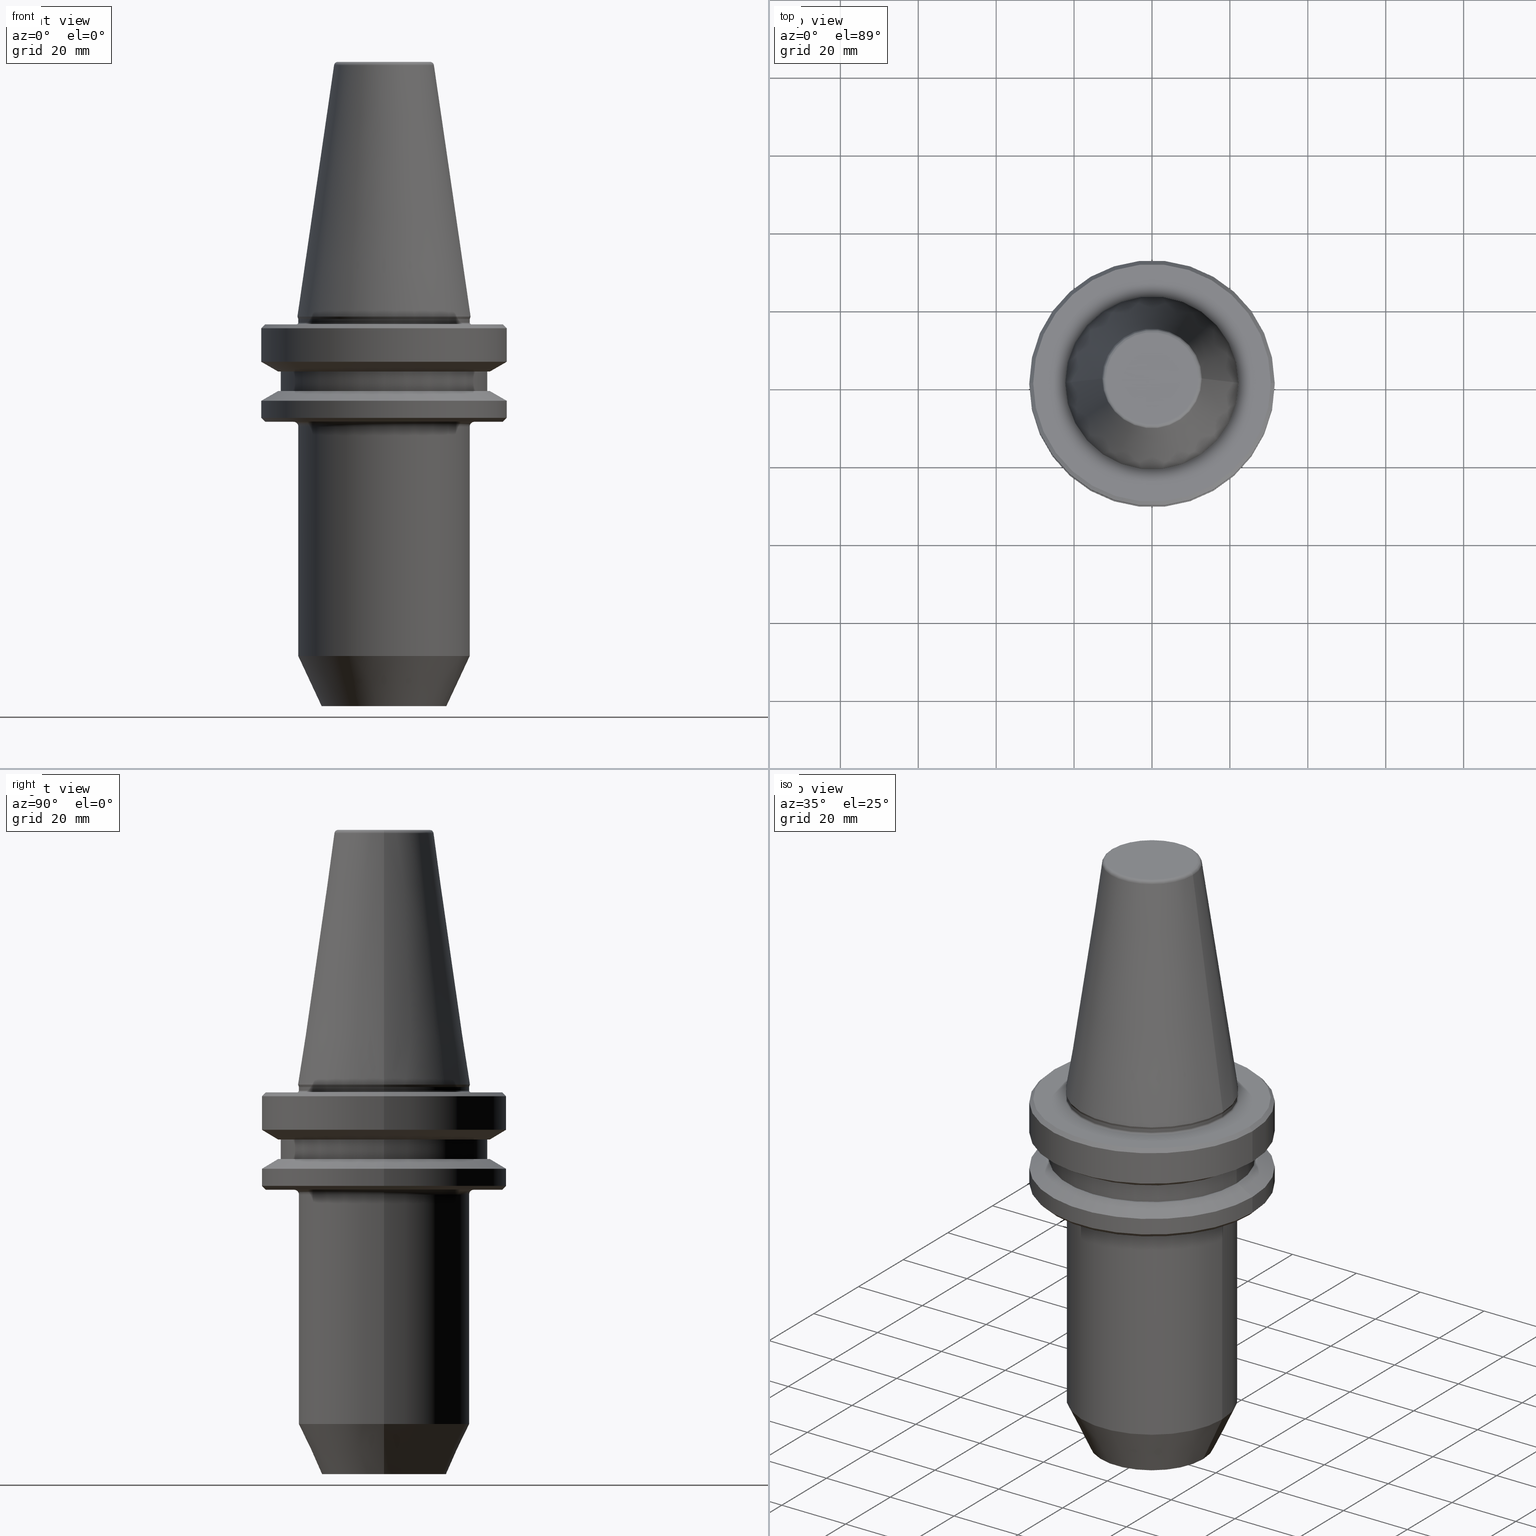
[diagram: canonical four-view strip — front | top / right | iso, engineering-drawing reading convention]
A machine part, canonical four-view strip (front | top / right | iso — engineering-drawing reading convention). The complete STEP part file that produces these views, byte-faithful:
ISO-10303-21;
HEADER;
FILE_DESCRIPTION (( 'STEP AP203' ),
    '1' );
FILE_NAME ('BT40 WE14 100 AD-6.3G15000 SL.STEP',
    '2019-05-22T08:41:57',
    ( '' ),
    ( '' ),
    'SwSTEP 2.0',
    'SolidWorks 2014',
    '' );
FILE_SCHEMA (( 'CONFIG_CONTROL_DESIGN' ));
ENDSEC;

DATA;
#1 = ORIENTED_EDGE ( 'NONE', *, *, #757, .F. ) ;
#2 = CARTESIAN_POINT ( 'NONE',  ( 0.0000000000000000000, 0.0000000000000000000, -99.31128678834039600 ) ) ;
#3 = SECURITY_CLASSIFICATION ( '', '', #74 ) ;
#4 = FACE_OUTER_BOUND ( 'NONE', #488, .T. ) ;
#5 = ORIENTED_EDGE ( 'NONE', *, *, #725, .T. ) ;
#6 = CC_DESIGN_PERSON_AND_ORGANIZATION_ASSIGNMENT ( #227, #576, ( #23 ) ) ;
#7 = CARTESIAN_POINT ( 'NONE',  ( 0.0000000000000000000, 0.0000000000000000000, -99.31128678834039600 ) ) ;
#8 = CC_DESIGN_PERSON_AND_ORGANIZATION_ASSIGNMENT ( #467, #1037, ( #23 ) ) ;
#9 = CC_DESIGN_APPROVAL ( #18, ( #23 ) ) ;
#10 = PLANE ( 'NONE',  #373 ) ;
#11 = ORIENTED_EDGE ( 'NONE', *, *, #413, .T. ) ;
#12 = CALENDAR_DATE ( 2019, 22, 5 ) ;
#13 = AXIS2_PLACEMENT_3D ( 'NONE', #513, #1043, #580 ) ;
#14 = ORIENTED_EDGE ( 'NONE', *, *, #474, .F. ) ;
#15 = DIRECTION ( 'NONE',  ( -0.0000000000000000000, -0.0000000000000000000, 1.000000000000000000 ) ) ;
#16 = CARTESIAN_POINT ( 'NONE',  ( 22.39999999999986400, 0.0000000000000000000, -5.551115123125782700E-014 ) ) ;
#17 = FACE_OUTER_BOUND ( 'NONE', #287, .T. ) ;
#18 = APPROVAL ( #971, 'UNSPECIFIED' ) ;
#19 = ORIENTED_EDGE ( 'NONE', *, *, #436, .F. ) ;
#20 = CARTESIAN_POINT ( 'NONE',  ( 0.0000000000000000000, 0.0000000000000000000, -2.311286788340083400 ) ) ;
#21 = TOROIDAL_SURFACE ( 'NONE', #604, 23.19999999999999900, 1.199999999999998000 ) ;
#22 = CARTESIAN_POINT ( 'NONE',  ( -22.00000000000000000, 2.694222958124176800E-015, -27.51128678844369400 ) ) ;
#23 = PRODUCT_DEFINITION_FORMATION_WITH_SPECIFIED_SOURCE ( 'ANY', '', #487, .NOT_KNOWN. ) ;
#24 = DIRECTION ( 'NONE',  ( 0.0000000000000000000, -0.0000000000000000000, 1.000000000000000000 ) ) ;
#25 = CC_DESIGN_DATE_AND_TIME_ASSIGNMENT ( #46, #431, ( #42 ) ) ;
#26 = CC_DESIGN_PERSON_AND_ORGANIZATION_ASSIGNMENT ( #926, #897, ( #42 ) ) ;
#27 = DIRECTION ( 'NONE',  ( -0.0000000000000000000, -0.0000000000000000000, 1.000000000000000000 ) ) ;
#28 = CIRCLE ( 'NONE', #108, 0.5000000000000282000 ) ;
#29 = ORIENTED_EDGE ( 'NONE', *, *, #886, .F. ) ;
#30 = CC_DESIGN_APPROVAL ( #36, ( #42 ) ) ;
#31 = ORIENTED_EDGE ( 'NONE', *, *, #861, .T. ) ;
#32 = DIRECTION ( 'NONE',  ( 0.0000000000000000000, -1.000000000000000000, 0.0000000000000000000 ) ) ;
#33 = VERTEX_POINT ( 'NONE', #705 ) ;
#34 = CARTESIAN_POINT ( 'NONE',  ( 22.00000000000000000, 0.0000000000000000000, 82.74845858742440900 ) ) ;
#35 = ORIENTED_EDGE ( 'NONE', *, *, #436, .T. ) ;
#36 = APPROVAL ( #822, 'UNSPECIFIED' ) ;
#37 = ORIENTED_EDGE ( 'NONE', *, *, #1036, .F. ) ;
#38 = CIRCLE ( 'NONE', #489, 31.49999999999986100 ) ;
#39 = ORIENTED_EDGE ( 'NONE', *, *, #755, .T. ) ;
#40 = CARTESIAN_POINT ( 'NONE',  ( 16.00000000000000000, 0.0000000000000000000, -99.31128678834039600 ) ) ;
#41 = DIRECTION ( 'NONE',  ( 0.0000000000000000000, -1.000000000000000000, 0.0000000000000000000 ) ) ;
#42 = PRODUCT_DEFINITION ( 'UNKNOWN', '', #23, #476 ) ;
#43 = DIRECTION ( 'NONE',  ( 1.000000000000000000, 0.0000000000000000000, 0.0000000000000000000 ) ) ;
#44 = CC_DESIGN_PERSON_AND_ORGANIZATION_ASSIGNMENT ( #551, #166, ( #487 ) ) ;
#45 = ORIENTED_EDGE ( 'NONE', *, *, #282, .T. ) ;
#46 = DATE_AND_TIME ( #284, #507 ) ;
#47 = CARTESIAN_POINT ( 'NONE',  ( 0.0000000000000000000, 0.0000000000000000000, 0.6887132116596417200 ) ) ;
#48 = DIRECTION ( 'NONE',  ( 1.000000000000000000, 0.0000000000000000000, 0.0000000000000000000 ) ) ;
#49 = FACE_OUTER_BOUND ( 'NONE', #825, .T. ) ;
#50 = DIRECTION ( 'NONE',  ( -0.0000000000000000000, -0.0000000000000000000, 1.000000000000000000 ) ) ;
#51 = VECTOR ( 'NONE', #124, 1000.000000000000000 ) ;
#52 = AXIS2_PLACEMENT_3D ( 'NONE', #2, #773, #107 ) ;
#53 = DIRECTION ( 'NONE',  ( 1.000000000000000000, 0.0000000000000000000, 0.0000000000000000000 ) ) ;
#54 = DIRECTION ( 'NONE',  ( 1.000000000000000000, 0.0000000000000000000, 0.0000000000000000000 ) ) ;
#55 = CARTESIAN_POINT ( 'NONE',  ( 31.50000000000019500, 3.857637417314186400E-015, -20.91142879476059900 ) ) ;
#56 = ORIENTED_EDGE ( 'NONE', *, *, #75, .T. ) ;
#57 = VERTEX_POINT ( 'NONE', #723 ) ;
#58 = TOROIDAL_SURFACE ( 'NONE', #130, 22.49999999999985400, 0.5000000000000282000 ) ;
#59 = ORIENTED_EDGE ( 'NONE', *, *, #677, .F. ) ;
#60 = DIRECTION ( 'NONE',  ( 0.0000000000000000000, 0.0000000000000000000, -1.000000000000000000 ) ) ;
#61 = AXIS2_PLACEMENT_3D ( 'NONE', #424, #568, #572 ) ;
#62 = CIRCLE ( 'NONE', #416, 31.50000000000019500 ) ;
#63 = CARTESIAN_POINT ( 'NONE',  ( 0.0000000000000000000, 0.0000000000000000000, -26.31128678844368800 ) ) ;
#64 = UNCERTAINTY_MEASURE_WITH_UNIT (LENGTH_MEASURE( 1.000000000000000100E-005 ), #818, 'distance_accuracy_value', 'NONE');
#65 = CARTESIAN_POINT ( 'NONE',  ( 0.0000000000000000000, 0.0000000000000000000, -10.91114478202370800 ) ) ;
#66 = AXIS2_PLACEMENT_3D ( 'NONE', #65, #964, #244 ) ;
#67 = APPLICATION_PROTOCOL_DEFINITION ( 'international standard', 'config_control_design', 1994, #969 ) ;
#68 = APPROVAL_DATE_TIME ( #309, #36 ) ;
#69 = ORIENTED_EDGE ( 'NONE', *, *, #515, .F. ) ;
#70 = CARTESIAN_POINT ( 'NONE',  ( 0.0000000000000000000, 0.0000000000000000000, -27.51128678844369400 ) ) ;
#71 = EDGE_CURVE ( 'NONE', #702, #275, #222, .T. ) ;
#72 = ORIENTED_EDGE ( 'NONE', *, *, #755, .F. ) ;
#73 = DIRECTION ( 'NONE',  ( -0.0000000000000000000, -0.0000000000000000000, 1.000000000000000000 ) ) ;
#74 = SECURITY_CLASSIFICATION_LEVEL ( 'unclassified' ) ;
#75 = EDGE_CURVE ( 'NONE', #57, #977, #627, .T. ) ;
#76 = CIRCLE ( 'NONE', #280, 22.49999999999985400 ) ;
#77 = DIRECTION ( 'NONE',  ( 1.000000000000000000, 0.0000000000000000000, 0.0000000000000000000 ) ) ;
#78 = CONICAL_SURFACE ( 'NONE', #1008, 27.16962701892278200, 1.047197551196600300 ) ;
#79 = AXIS2_PLACEMENT_3D ( 'NONE', #965, #503, #1033 ) ;
#80 = AXIS2_PLACEMENT_3D ( 'NONE', #625, #549, #865 ) ;
#81 = AXIS2_PLACEMENT_3D ( 'NONE', #162, #744, #249 ) ;
#82 = CARTESIAN_POINT ( 'NONE',  ( 0.0000000000000000000, 0.0000000000000000000, -18.41128678844344800 ) ) ;
#83 = DIRECTION ( 'NONE',  ( 1.000000000000000000, 0.0000000000000000000, 0.0000000000000000000 ) ) ;
#84 = EDGE_CURVE ( 'NONE', #827, #360, #839, .T. ) ;
#85 = LINE ( 'NONE', #724, #537 ) ;
#86 = VERTEX_POINT ( 'NONE', #789 ) ;
#87 = DIRECTION ( 'NONE',  ( -0.0000000000000000000, -0.0000000000000000000, 1.000000000000000000 ) ) ;
#88 = AXIS2_PLACEMENT_3D ( 'NONE', #889, #421, #237 ) ;
#89 = CC_DESIGN_PERSON_AND_ORGANIZATION_ASSIGNMENT ( #1040, #660, ( #3 ) ) ;
#90 = VERTEX_POINT ( 'NONE', #745 ) ;
#91 = CONICAL_SURFACE ( 'NONE', #647, 31.50000000000019500, 1.047197551196600500 ) ;
#92 = DIRECTION ( 'NONE',  ( -0.0000000000000000000, -0.0000000000000000000, 1.000000000000000000 ) ) ;
#93 = ADVANCED_FACE ( 'NONE', ( #821 ), #987, .T. ) ;
#94 = AXIS2_PLACEMENT_3D ( 'NONE', #242, #816, #331 ) ;
#95 = AXIS2_PLACEMENT_3D ( 'NONE', #962, #814, #329 ) ;
#96 = EDGE_LOOP ( 'NONE', ( #911, #767, #842, #118 ) ) ;
#97 = APPROVAL_PERSON_ORGANIZATION ( #336, #36, #339 ) ;
#98 = ADVANCED_FACE ( 'NONE', ( #463 ), #195, .T. ) ;
#99 = CARTESIAN_POINT ( 'NONE',  ( -22.39999999999986400, 2.743208830090054500E-015, -5.551115123125782700E-014 ) ) ;
#100 = AXIS2_PLACEMENT_3D ( 'NONE', #959, #60, #642 ) ;
#101 = AXIS2_PLACEMENT_3D ( 'NONE', #565, #235, #54 ) ;
#102 = ADVANCED_FACE ( 'NONE', ( #1012 ), #169, .F. ) ;
#103 = CIRCLE ( 'NONE', #300, 27.16962701892167300 ) ;
#104 = ADVANCED_FACE ( 'NONE', ( #575, #404 ), #366, .F. ) ;
#105 = FACE_OUTER_BOUND ( 'NONE', #96, .T. ) ;
#106 = DIRECTION ( 'NONE',  ( 1.000000000000000000, 0.0000000000000000000, 0.0000000000000000000 ) ) ;
#107 = DIRECTION ( 'NONE',  ( 1.000000000000000000, 0.0000000000000000000, 0.0000000000000000000 ) ) ;
#108 = AXIS2_PLACEMENT_3D ( 'NONE', #323, #884, #419 ) ;
#109 = AXIS2_PLACEMENT_3D ( 'NONE', #412, #319, #881 ) ;
#110 = ORIENTED_EDGE ( 'NONE', *, *, #845, .T. ) ;
#111 = DIRECTION ( 'NONE',  ( 1.000000000000000000, 0.0000000000000000000, 0.0000000000000000000 ) ) ;
#112 = ADVANCED_FACE ( 'NONE', ( #795, #600 ), #450, .F. ) ;
#113 = AXIS2_PLACEMENT_3D ( 'NONE', #641, #150, #734 ) ;
#114 = DIRECTION ( 'NONE',  ( 1.000000000000000000, 0.0000000000000000000, 0.0000000000000000000 ) ) ;
#115 = ORIENTED_EDGE ( 'NONE', *, *, #465, .F. ) ;
#116 = VERTEX_POINT ( 'NONE', #918 ) ;
#117 = FACE_OUTER_BOUND ( 'NONE', #640, .T. ) ;
#118 = ORIENTED_EDGE ( 'NONE', *, *, #213, .F. ) ;
#119 = CARTESIAN_POINT ( 'NONE',  ( 0.0000000000000000000, 0.0000000000000000000, -2.311286788340083400 ) ) ;
#120 = CARTESIAN_POINT ( 'NONE',  ( 0.0000000000000000000, 0.0000000000000000000, 66.08871321166032000 ) ) ;
#121 = FACE_OUTER_BOUND ( 'NONE', #365, .T. ) ;
#122 = AXIS2_PLACEMENT_3D ( 'NONE', #729, #234, #807 ) ;
#123 = DIRECTION ( 'NONE',  ( -0.0000000000000000000, -0.0000000000000000000, 1.000000000000000000 ) ) ;
#124 = DIRECTION ( 'NONE',  ( -0.0000000000000000000, -0.0000000000000000000, 1.000000000000000000 ) ) ;
#125 = AXIS2_PLACEMENT_3D ( 'NONE', #346, #907, #48 ) ;
#126 = CARTESIAN_POINT ( 'NONE',  ( 0.0000000000000000000, 0.0000000000000000000, -99.31128678834039600 ) ) ;
#127 = AXIS2_PLACEMENT_3D ( 'NONE', #446, #1047, #914 ) ;
#128 = DIRECTION ( 'NONE',  ( -1.000000000000000000, 0.0000000000000000000, 0.0000000000000000000 ) ) ;
#129 = ORIENTED_EDGE ( 'NONE', *, *, #558, .T. ) ;
#130 = AXIS2_PLACEMENT_3D ( 'NONE', #557, #225, #799 ) ;
#131 = ORIENTED_EDGE ( 'NONE', *, *, #84, .T. ) ;
#132 = CARTESIAN_POINT ( 'NONE',  ( -26.50000000000007800, 3.245314017740495600E-015, 82.74845858742440900 ) ) ;
#133 = DIRECTION ( 'NONE',  ( 0.0000000000000000000, 0.0000000000000000000, -1.000000000000000000 ) ) ;
#134 = AXIS2_PLACEMENT_3D ( 'NONE', #1019, #560, #53 ) ;
#135 = FACE_OUTER_BOUND ( 'NONE', #535, .T. ) ;
#136 = EDGE_LOOP ( 'NONE', ( #19, #784, #1045, #614 ) ) ;
#137 = FACE_OUTER_BOUND ( 'NONE', #526, .T. ) ;
#138 = DIRECTION ( 'NONE',  ( -0.0000000000000000000, -0.0000000000000000000, 1.000000000000000000 ) ) ;
#139 = ADVANCED_FACE ( 'NONE', ( #771 ), #956, .T. ) ;
#140 = CARTESIAN_POINT ( 'NONE',  ( -31.49999999999986100, 3.857637417314145300E-015, -2.311286788340083400 ) ) ;
#141 = CARTESIAN_POINT ( 'NONE',  ( 0.0000000000000000000, 0.0000000000000000000, 0.6887132116596417200 ) ) ;
#142 = AXIS2_PLACEMENT_3D ( 'NONE', #693, #708, #214 ) ;
#143 = AXIS2_PLACEMENT_3D ( 'NONE', #141, #728, #229 ) ;
#144 = ORIENTED_EDGE ( 'NONE', *, *, #882, .T. ) ;
#145 = CARTESIAN_POINT ( 'NONE',  ( 31.49999999999986100, 0.0000000000000000000, -10.91114478202370800 ) ) ;
#146 = VECTOR ( 'NONE', #948, 1000.000000000000100 ) ;
#147 = AXIS2_PLACEMENT_3D ( 'NONE', #952, #491, #553 ) ;
#148 = EDGE_LOOP ( 'NONE', ( #1030, #955, #731, #587 ) ) ;
#149 = CARTESIAN_POINT ( 'NONE',  ( 0.0000000000000000000, 0.0000000000000000000, -27.51128678844369400 ) ) ;
#150 = DIRECTION ( 'NONE',  ( 0.0000000000000000000, -1.000000000000000000, 0.0000000000000000000 ) ) ;
#151 = ORIENTED_EDGE ( 'NONE', *, *, #616, .F. ) ;
#152 = CARTESIAN_POINT ( 'NONE',  ( 30.49999999999997200, 0.0000000000000000000, -26.31128678844368800 ) ) ;
#153 = EDGE_LOOP ( 'NONE', ( #72, #803 ) ) ;
#154 = LINE ( 'NONE', #263, #980 ) ;
#155 = AXIS2_PLACEMENT_3D ( 'NONE', #47, #630, #1013 ) ;
#156 = AXIS2_PLACEMENT_3D ( 'NONE', #716, #223, #793 ) ;
#157 = CARTESIAN_POINT ( 'NONE',  ( 31.50000000000019500, 0.0000000000000000000, -25.31128678844346400 ) ) ;
#158 = AXIS2_PLACEMENT_3D ( 'NONE', #126, #714, #220 ) ;
#159 = CARTESIAN_POINT ( 'NONE',  ( 0.0000000000000000000, 0.0000000000000000000, 0.1368080573304758500 ) ) ;
#160 = ORIENTED_EDGE ( 'NONE', *, *, #282, .F. ) ;
#161 = VERTEX_POINT ( 'NONE', #22 ) ;
#162 = CARTESIAN_POINT ( 'NONE',  ( 0.0000000000000000000, 0.0000000000000000000, -18.41128678844344800 ) ) ;
#163 = AXIS2_PLACEMENT_3D ( 'NONE', #480, #123, #1003 ) ;
#164 = ORIENTED_EDGE ( 'NONE', *, *, #628, .T. ) ;
#165 = FACE_OUTER_BOUND ( 'NONE', #357, .T. ) ;
#166 = PERSON_AND_ORGANIZATION_ROLE ( 'design_owner' ) ;
#167 = AXIS2_PLACEMENT_3D ( 'NONE', #786, #302, #858 ) ;
#168 = DIRECTION ( 'NONE',  ( 1.000000000000000000, 0.0000000000000000000, 0.0000000000000000000 ) ) ;
#169 = TOROIDAL_SURFACE ( 'NONE', #257, 23.19999999999999900, 1.199999999999998000 ) ;
#170 = AXIS2_PLACEMENT_3D ( 'NONE', #547, #32, #619 ) ;
#171 = DIRECTION ( 'NONE',  ( -0.0000000000000000000, -0.0000000000000000000, 1.000000000000000000 ) ) ;
#172 = AXIS2_PLACEMENT_3D ( 'NONE', #853, #390, #941 ) ;
#173 = DATE_TIME_ROLE ( 'classification_date' ) ;
#174 = DIRECTION ( 'NONE',  ( -0.0000000000000000000, -0.0000000000000000000, 1.000000000000000000 ) ) ;
#175 = DIRECTION ( 'NONE',  ( -0.0000000000000000000, -0.0000000000000000000, 1.000000000000000000 ) ) ;
#176 = CALENDAR_DATE ( 2019, 22, 5 ) ;
#177 = CARTESIAN_POINT ( 'NONE',  ( 0.0000000000000000000, 0.0000000000000000000, -26.31128678844368800 ) ) ;
#178 = ORIENTED_EDGE ( 'NONE', *, *, #677, .T. ) ;
#179 = AXIS2_PLACEMENT_3D ( 'NONE', #120, #706, #212 ) ;
#180 = EDGE_LOOP ( 'NONE', ( #39, #502, #1, #243 ) ) ;
#181 = AXIS2_PLACEMENT_3D ( 'NONE', #613, #211, #700 ) ;
#182 = DIRECTION ( 'NONE',  ( 1.000000000000000000, 0.0000000000000000000, 0.0000000000000000000 ) ) ;
#183 = CARTESIAN_POINT ( 'NONE',  ( 0.0000000000000000000, 0.0000000000000000000, 82.74845858742440900 ) ) ;
#184 = ORIENTED_EDGE ( 'NONE', *, *, #764, .F. ) ;
#185 = LINE ( 'NONE', #361, #1000 ) ;
#186 = AXIS2_PLACEMENT_3D ( 'NONE', #295, #852, #384 ) ;
#187 = AXIS2_PLACEMENT_3D ( 'NONE', #473, #996, #534 ) ;
#188 = ORIENTED_EDGE ( 'NONE', *, *, #558, .F. ) ;
#189 = VERTEX_POINT ( 'NONE', #934 ) ;
#190 = AXIS2_PLACEMENT_3D ( 'NONE', #201, #290, #106 ) ;
#191 = DIRECTION ( 'NONE',  ( 1.000000000000000000, 0.0000000000000000000, 0.0000000000000000000 ) ) ;
#192 = AXIS2_PLACEMENT_3D ( 'NONE', #989, #762, #928 ) ;
#193 = CIRCLE ( 'NONE', #362, 22.00000000000000000 ) ;
#194 = ORIENTED_EDGE ( 'NONE', *, *, #826, .T. ) ;
#195 = CYLINDRICAL_SURFACE ( 'NONE', #673, 22.00000000000000000 ) ;
#196 = ADVANCED_FACE ( 'NONE', ( #137 ), #343, .F. ) ;
#197 = ADVANCED_FACE ( 'NONE', ( #972 ), #78, .T. ) ;
#198 = AXIS2_PLACEMENT_3D ( 'NONE', #533, #697, #469 ) ;
#199 = DIRECTION ( 'NONE',  ( 0.0000000000000000000, 0.0000000000000000000, -1.000000000000000000 ) ) ;
#200 = AXIS2_PLACEMENT_3D ( 'NONE', #20, #609, #111 ) ;
#201 = CARTESIAN_POINT ( 'NONE',  ( 0.0000000000000000000, 0.0000000000000000000, 82.74845858742440900 ) ) ;
#202 = ORIENTED_EDGE ( 'NONE', *, *, #530, .T. ) ;
#203 = DATE_AND_TIME ( #438, #632 ) ;
#204 = ORIENTED_EDGE ( 'NONE', *, *, #740, .T. ) ;
#205 = CARTESIAN_POINT ( 'NONE',  ( 11.82266927716801800, 0.0000000000000000000, 66.08871321166032000 ) ) ;
#206 = ORIENTED_EDGE ( 'NONE', *, *, #890, .T. ) ;
#207 = ADVANCED_FACE ( 'NONE', ( #105 ), #727, .T. ) ;
#208 = CARTESIAN_POINT ( 'NONE',  ( -22.22499999999971700, 0.0000000000000000000, 0.6887132116596417200 ) ) ;
#209 = CIRCLE ( 'NONE', #167, 12.81220206925715000 ) ;
#210 = CONICAL_SURFACE ( 'NONE', #462, 30.49999999999997200, 0.7853981633974482800 ) ;
#211 = DIRECTION ( 'NONE',  ( -0.0000000000000000000, -0.0000000000000000000, 1.000000000000000000 ) ) ;
#212 = DIRECTION ( 'NONE',  ( 1.000000000000000000, 0.0000000000000000000, 0.0000000000000000000 ) ) ;
#213 = EDGE_CURVE ( 'NONE', #718, #935, #931, .T. ) ;
#214 = DIRECTION ( 'NONE',  ( 1.000000000000000000, 0.0000000000000000000, 0.0000000000000000000 ) ) ;
#215 = EDGE_CURVE ( 'NONE', #804, #400, #754, .T. ) ;
#216 = FACE_OUTER_BOUND ( 'NONE', #836, .T. ) ;
#217 = DIRECTION ( 'NONE',  ( 0.0000000000000000000, 0.0000000000000000000, -1.000000000000000000 ) ) ;
#218 = AXIS2_PLACEMENT_3D ( 'NONE', #885, #50, #1028 ) ;
#219 = ORIENTED_EDGE ( 'NONE', *, *, #772, .F. ) ;
#220 = DIRECTION ( 'NONE',  ( 1.000000000000000000, 0.0000000000000000000, 0.0000000000000000000 ) ) ;
#221 = CIRCLE ( 'NONE', #363, 1.199999999999999700 ) ;
#222 = LINE ( 'NONE', #732, #1035 ) ;
#223 = DIRECTION ( 'NONE',  ( -0.0000000000000000000, -0.0000000000000000000, 1.000000000000000000 ) ) ;
#224 = DIRECTION ( 'NONE',  ( -0.0000000000000000000, -0.0000000000000000000, 1.000000000000000000 ) ) ;
#225 = DIRECTION ( 'NONE',  ( -0.0000000000000000000, -0.0000000000000000000, 1.000000000000000000 ) ) ;
#226 = AXIS2_PLACEMENT_3D ( 'NONE', #529, #15, #603 ) ;
#227 = PERSON_AND_ORGANIZATION ( #245, #766 ) ;
#228 = ORIENTED_EDGE ( 'NONE', *, *, #873, .F. ) ;
#229 = DIRECTION ( 'NONE',  ( 1.000000000000000000, 0.0000000000000000000, 0.0000000000000000000 ) ) ;
#230 = DIRECTION ( 'NONE',  ( 0.1443081888881784800, 1.767265616126594100E-017, -0.9895327920891828800 ) ) ;
#231 = CIRCLE ( 'NONE', #158, 16.00000000000000000 ) ;
#232 = FACE_OUTER_BOUND ( 'NONE', #246, .T. ) ;
#233 = ADVANCED_BREP_SHAPE_REPRESENTATION ( 'BT40 WE14 100 AD-6.3G15000 SL', ( #830, #61 ), #274 ) ;
#234 = DIRECTION ( 'NONE',  ( -0.0000000000000000000, -0.0000000000000000000, 1.000000000000000000 ) ) ;
#235 = DIRECTION ( 'NONE',  ( -0.0000000000000000000, -0.0000000000000000000, 1.000000000000000000 ) ) ;
#236 = VERTEX_POINT ( 'NONE', #559 ) ;
#237 = DIRECTION ( 'NONE',  ( 1.000000000000000000, 0.0000000000000000000, 0.0000000000000000000 ) ) ;
#238 = FACE_BOUND ( 'NONE', #620, .T. ) ;
#239 = CARTESIAN_POINT ( 'NONE',  ( 0.0000000000000000000, 0.0000000000000000000, 66.08871321166032000 ) ) ;
#240 = ORIENTED_EDGE ( 'NONE', *, *, #618, .F. ) ;
#241 = VERTEX_POINT ( 'NONE', #442 ) ;
#242 = CARTESIAN_POINT ( 'NONE',  ( 0.0000000000000000000, 0.0000000000000000000, -26.31128678844368800 ) ) ;
#243 = ORIENTED_EDGE ( 'NONE', *, *, #75, .F. ) ;
#244 = DIRECTION ( 'NONE',  ( 1.000000000000000000, 0.0000000000000000000, 0.0000000000000000000 ) ) ;
#245 = PERSON ( 'UNSPECIFIED', 'UNSPECIFIED', 'UNSPECIFIED', ('UNSPECIFIED'), ('UNSPECIFIED'), ('UNSPECIFIED') ) ;
#246 = EDGE_LOOP ( 'NONE', ( #879, #164, #56, #863 ) ) ;
#247 = CIRCLE ( 'NONE', #406, 0.4000000000001126500 ) ;
#248 = ORIENTED_EDGE ( 'NONE', *, *, #802, .F. ) ;
#249 = DIRECTION ( 'NONE',  ( 1.000000000000000000, 0.0000000000000000000, 0.0000000000000000000 ) ) ;
#250 = DIRECTION ( 'NONE',  ( 1.000000000000000000, 0.0000000000000000000, 0.0000000000000000000 ) ) ;
#251 = AXIS2_PLACEMENT_3D ( 'NONE', #457, #983, #1050 ) ;
#252 = APPLICATION_PROTOCOL_DEFINITION ( 'international standard', 'config_control_design', 1994, #748 ) ;
#253 = CARTESIAN_POINT ( 'NONE',  ( 0.0000000000000000000, 0.0000000000000000000, 82.74845858742440900 ) ) ;
#254 = ORIENTED_EDGE ( 'NONE', *, *, #809, .F. ) ;
#255 = CARTESIAN_POINT ( 'NONE',  ( 0.0000000000000000000, 0.0000000000000000000, 82.74845858742440900 ) ) ;
#256 = LOCAL_TIME ( 14, 11, 57.00000000000000000, #492 ) ;
#257 = AXIS2_PLACEMENT_3D ( 'NONE', #715, #401, #279 ) ;
#258 = APPROVAL_ROLE ( '' ) ;
#259 = AXIS2_PLACEMENT_3D ( 'NONE', #374, #171, #675 ) ;
#260 = ORIENTED_EDGE ( 'NONE', *, *, #520, .T. ) ;
#261 = DIRECTION ( 'NONE',  ( 0.0000000000000000000, 0.0000000000000000000, -1.000000000000000000 ) ) ;
#262 = ORIENTED_EDGE ( 'NONE', *, *, #497, .T. ) ;
#263 = CARTESIAN_POINT ( 'NONE',  ( -31.49999999999986100, 0.0000000000000000000, -2.311286788340083400 ) ) ;
#264 = CYLINDRICAL_SURFACE ( 'NONE', #192, 26.50000000000007800 ) ;
#265 = DIRECTION ( 'NONE',  ( 1.000000000000000000, 0.0000000000000000000, 0.0000000000000000000 ) ) ;
#266 = ORIENTED_EDGE ( 'NONE', *, *, #775, .F. ) ;
#267 = FACE_OUTER_BOUND ( 'NONE', #272, .T. ) ;
#268 = VERTEX_POINT ( 'NONE', #292 ) ;
#269 = CARTESIAN_POINT ( 'NONE',  ( 0.0000000000000000000, 0.0000000000000000000, -1.311286788340082500 ) ) ;
#270 = ORIENTED_EDGE ( 'NONE', *, *, #769, .T. ) ;
#271 = AXIS2_PLACEMENT_3D ( 'NONE', #490, #133, #128 ) ;
#272 = EDGE_LOOP ( 'NONE', ( #902, #682, #178, #5 ) ) ;
#273 = DIRECTION ( 'NONE',  ( -0.7071067811865474600, 0.0000000000000000000, -0.7071067811865475700 ) ) ;
#274 =( GEOMETRIC_REPRESENTATION_CONTEXT ( 3 ) GLOBAL_UNCERTAINTY_ASSIGNED_CONTEXT ( ( #64 ) ) GLOBAL_UNIT_ASSIGNED_CONTEXT ( ( #818, #334, #895 ) ) REPRESENTATION_CONTEXT ( 'NONE', 'WORKASPACE' ) );
#275 = VERTEX_POINT ( 'NONE', #468 ) ;
#276 = ORIENTED_EDGE ( 'NONE', *, *, #474, .T. ) ;
#277 = LINE ( 'NONE', #713, #501 ) ;
#278 = EDGE_CURVE ( 'NONE', #360, #622, #369, .T. ) ;
#279 = DIRECTION ( 'NONE',  ( 1.000000000000000000, 0.0000000000000000000, 0.0000000000000000000 ) ) ;
#280 = AXIS2_PLACEMENT_3D ( 'NONE', #586, #87, #674 ) ;
#281 = ORIENTED_EDGE ( 'NONE', *, *, #869, .F. ) ;
#282 = EDGE_CURVE ( 'NONE', #686, #707, #315, .T. ) ;
#283 = ORIENTED_EDGE ( 'NONE', *, *, #733, .T. ) ;
#284 = CALENDAR_DATE ( 2019, 22, 5 ) ;
#285 = ORIENTED_EDGE ( 'NONE', *, *, #939, .T. ) ;
#286 = AXIS2_PLACEMENT_3D ( 'NONE', #666, #831, #583 ) ;
#287 = EDGE_LOOP ( 'NONE', ( #184, #260, #992, #550 ) ) ;
#288 = CARTESIAN_POINT ( 'NONE',  ( 0.0000000000000000000, 0.0000000000000000000, -1.311286788340082500 ) ) ;
#289 = CONICAL_SURFACE ( 'NONE', #286, 31.49999999999986100, 0.7853981633974482800 ) ;
#290 = DIRECTION ( 'NONE',  ( -0.0000000000000000000, -0.0000000000000000000, 1.000000000000000000 ) ) ;
#291 = FACE_OUTER_BOUND ( 'NONE', #838, .T. ) ;
#292 = CARTESIAN_POINT ( 'NONE',  ( -26.50000000000007800, 3.245314017740495600E-015, -13.41128678834002700 ) ) ;
#293 = EDGE_LOOP ( 'NONE', ( #460, #202, #894, #645 ) ) ;
#294 = CARTESIAN_POINT ( 'NONE',  ( 0.0000000000000000000, 0.0000000000000000000, -2.311286788340083400 ) ) ;
#295 = CARTESIAN_POINT ( 'NONE',  ( 0.0000000000000000000, 0.0000000000000000000, -1.311286788340082500 ) ) ;
#296 = CONICAL_SURFACE ( 'NONE', #155, 22.22499999999971700, 0.1448138077623186700 ) ;
#297 = EDGE_CURVE ( 'NONE', #241, #161, #531, .T. ) ;
#298 = AXIS2_PLACEMENT_3D ( 'NONE', #288, #841, #370 ) ;
#299 = ORIENTED_EDGE ( 'NONE', *, *, #307, .F. ) ;
#300 = AXIS2_PLACEMENT_3D ( 'NONE', #82, #671, #182 ) ;
#301 = VECTOR ( 'NONE', #405, 1000.000000000000000 ) ;
#302 = DIRECTION ( 'NONE',  ( -0.0000000000000000000, -0.0000000000000000000, 1.000000000000000000 ) ) ;
#303 = CARTESIAN_POINT ( 'NONE',  ( 0.0000000000000000000, 0.0000000000000000000, -86.44424526528283100 ) ) ;
#304 = ADVANCED_FACE ( 'NONE', ( #556 ), #910, .T. ) ;
#305 = AXIS2_PLACEMENT_3D ( 'NONE', #913, #443, #975 ) ;
#306 = CARTESIAN_POINT ( 'NONE',  ( -16.00000000000000000, 1.959434878635765100E-015, -99.31128678834039600 ) ) ;
#307 = EDGE_CURVE ( 'NONE', #935, #718, #696, .T. ) ;
#308 = AXIS2_PLACEMENT_3D ( 'NONE', #904, #577, #973 ) ;
#309 = DATE_AND_TIME ( #524, #746 ) ;
#310 = EDGE_LOOP ( 'NONE', ( #605, #441, #606, #984 ) ) ;
#311 = AXIS2_PLACEMENT_3D ( 'NONE', #432, #261, #824 ) ;
#312 = LINE ( 'NONE', #917, #726 ) ;
#313 = CARTESIAN_POINT ( 'NONE',  ( 22.00000000000000000, 0.0000000000000000000, -27.51128678844369400 ) ) ;
#314 = AXIS2_PLACEMENT_3D ( 'NONE', #177, #756, #265 ) ;
#315 = LINE ( 'NONE', #938, #512 ) ;
#316 = PLANE ( 'NONE',  #109 ) ;
#317 = CARTESIAN_POINT ( 'NONE',  ( 12.81220206925713600, 0.0000000000000000000, 65.23302140054848100 ) ) ;
#318 = AXIS2_PLACEMENT_3D ( 'NONE', #253, #420, #651 ) ;
#319 = DIRECTION ( 'NONE',  ( 0.0000000000000000000, -0.0000000000000000000, 1.000000000000000000 ) ) ;
#320 = CARTESIAN_POINT ( 'NONE',  ( 0.0000000000000000000, 0.0000000000000000000, 0.6887132116596417200 ) ) ;
#321 = VERTEX_POINT ( 'NONE', #506 ) ;
#322 = LINE ( 'NONE', #872, #736 ) ;
#323 = CARTESIAN_POINT ( 'NONE',  ( -22.49999999999985400, 2.755455298081526600E-015, -0.8112867883400820500 ) ) ;
#324 = AXIS2_PLACEMENT_3D ( 'NONE', #662, #174, #753 ) ;
#325 = ORIENTED_EDGE ( 'NONE', *, *, #656, .F. ) ;
#326 = ORIENTED_EDGE ( 'NONE', *, *, #890, .F. ) ;
#327 = EDGE_CURVE ( 'NONE', #189, #275, #496, .T. ) ;
#328 = LINE ( 'NONE', #637, #546 ) ;
#329 = DIRECTION ( 'NONE',  ( 1.000000000000000000, 0.0000000000000000000, 0.0000000000000000000 ) ) ;
#330 = CARTESIAN_POINT ( 'NONE',  ( 21.99999999999982600, 0.0000000000000000000, -0.8112867883400820500 ) ) ;
#331 = DIRECTION ( 'NONE',  ( 1.000000000000000000, 0.0000000000000000000, 0.0000000000000000000 ) ) ;
#332 = ADVANCED_FACE ( 'NONE', ( #267 ), #21, .F. ) ;
#333 = DIRECTION ( 'NONE',  ( -0.0000000000000000000, -0.0000000000000000000, 1.000000000000000000 ) ) ;
#334 =( NAMED_UNIT ( * ) PLANE_ANGLE_UNIT ( ) SI_UNIT ( $, .RADIAN. ) );
#335 = ORIENTED_EDGE ( 'NONE', *, *, #699, .F. ) ;
#336 = PERSON_AND_ORGANIZATION ( #245, #766 ) ;
#337 = AXIS2_PLACEMENT_3D ( 'NONE', #823, #340, #901 ) ;
#338 = ORIENTED_EDGE ( 'NONE', *, *, #873, .T. ) ;
#339 = APPROVAL_ROLE ( '' ) ;
#340 = DIRECTION ( 'NONE',  ( -0.0000000000000000000, -0.0000000000000000000, 1.000000000000000000 ) ) ;
#341 = CIRCLE ( 'NONE', #314, 30.49999999999997200 ) ;
#342 = DIRECTION ( 'NONE',  ( 1.224646799147353200E-016, 1.000000000000000000, 0.0000000000000000000 ) ) ;
#343 = TOROIDAL_SURFACE ( 'NONE', #259, 22.39999999999986400, 0.4000000000001126500 ) ;
#344 = AXIS2_PLACEMENT_3D ( 'NONE', #70, #657, #168 ) ;
#345 = ADVANCED_FACE ( 'NONE', ( #291 ), #1046, .T. ) ;
#346 = CARTESIAN_POINT ( 'NONE',  ( 0.0000000000000000000, 0.0000000000000000000, -0.8112867883400820500 ) ) ;
#347 = AXIS2_PLACEMENT_3D ( 'NONE', #159, #648, #985 ) ;
#348 = DIRECTION ( 'NONE',  ( 1.000000000000000000, 0.0000000000000000000, 0.0000000000000000000 ) ) ;
#349 = AXIS2_PLACEMENT_3D ( 'NONE', #149, #927, #929 ) ;
#350 = VECTOR ( 'NONE', #864, 1000.000000000000100 ) ;
#351 = ORIENTED_EDGE ( 'NONE', *, *, #477, .T. ) ;
#352 = CARTESIAN_POINT ( 'NONE',  ( 22.22499999999971700, 0.0000000000000000000, 0.6887132116596417200 ) ) ;
#353 = ORIENTED_EDGE ( 'NONE', *, *, #826, .F. ) ;
#354 = CARTESIAN_POINT ( 'NONE',  ( 0.0000000000000000000, 26.50000000000007800, -18.41128678844344800 ) ) ;
#355 = ORIENTED_EDGE ( 'NONE', *, *, #920, .T. ) ;
#356 = AXIS2_PLACEMENT_3D ( 'NONE', #730, #1020, #817 ) ;
#357 = EDGE_LOOP ( 'NONE', ( #14, #355, #45, #325 ) ) ;
#358 = VECTOR ( 'NONE', #780, 1000.000000000000000 ) ;
#359 = CC_DESIGN_DATE_AND_TIME_ASSIGNMENT ( #203, #173, ( #3 ) ) ;
#360 = VERTEX_POINT ( 'NONE', #701 ) ;
#361 = CARTESIAN_POINT ( 'NONE',  ( 26.50000000000007800, 0.0000000000000000000, 82.74845858742440900 ) ) ;
#362 = AXIS2_PLACEMENT_3D ( 'NONE', #303, #333, #961 ) ;
#363 = AXIS2_PLACEMENT_3D ( 'NONE', #840, #417, #199 ) ;
#364 = ORIENTED_EDGE ( 'NONE', *, *, #909, .F. ) ;
#365 = EDGE_LOOP ( 'NONE', ( #974, #887, #669, #815 ) ) ;
#366 = PLANE ( 'NONE',  #504 ) ;
#367 = AXIS2_PLACEMENT_3D ( 'NONE', #63, #224, #995 ) ;
#368 = CONICAL_SURFACE ( 'NONE', #347, 22.02412295168547700, 0.3490658503993923600 ) ;
#369 = CIRCLE ( 'NONE', #1002, 0.4000000000001120400 ) ;
#370 = DIRECTION ( 'NONE',  ( 1.000000000000000000, 0.0000000000000000000, 0.0000000000000000000 ) ) ;
#371 = DIRECTION ( 'NONE',  ( 0.0000000000000000000, -0.0000000000000000000, 1.000000000000000000 ) ) ;
#372 = ADVANCED_FACE ( 'NONE', ( #232 ), #210, .T. ) ;
#373 = AXIS2_PLACEMENT_3D ( 'NONE', #957, #371, #621 ) ;
#374 = CARTESIAN_POINT ( 'NONE',  ( 0.0000000000000000000, 0.0000000000000000000, -5.551115123125782700E-014 ) ) ;
#375 = EDGE_CURVE ( 'NONE', #471, #427, #447, .T. ) ;
#376 = ORIENTED_EDGE ( 'NONE', *, *, #307, .T. ) ;
#377 = VERTEX_POINT ( 'NONE', #561 ) ;
#378 = LINE ( 'NONE', #40, #146 ) ;
#379 = AXIS2_PLACEMENT_3D ( 'NONE', #387, #569, #743 ) ;
#380 = DIRECTION ( 'NONE',  ( -0.1443081888881784800, 0.0000000000000000000, -0.9895327920891828800 ) ) ;
#381 = VERTEX_POINT ( 'NONE', #668 ) ;
#382 = ADVANCED_FACE ( 'NONE', ( #878 ), #1024, .T. ) ;
#383 = EDGE_LOOP ( 'NONE', ( #399, #204, #519, #820 ) ) ;
#384 = DIRECTION ( 'NONE',  ( 1.000000000000000000, 0.0000000000000000000, 0.0000000000000000000 ) ) ;
#385 = EDGE_LOOP ( 'NONE', ( #455, #270, #299, #570 ) ) ;
#386 = LINE ( 'NONE', #698, #921 ) ;
#387 = CARTESIAN_POINT ( 'NONE',  ( 0.0000000000000000000, 0.0000000000000000000, -5.551115123125782700E-014 ) ) ;
#388 = AXIS2_PLACEMENT_3D ( 'NONE', #7, #393, #532 ) ;
#389 = AXIS2_PLACEMENT_3D ( 'NONE', #119, #217, #1014 ) ;
#390 = DIRECTION ( 'NONE',  ( 1.224646799147353200E-016, 1.000000000000000000, 0.0000000000000000000 ) ) ;
#391 = AXIS2_PLACEMENT_3D ( 'NONE', #868, #796, #43 ) ;
#392 = CC_DESIGN_SECURITY_CLASSIFICATION ( #3, ( #23 ) ) ;
#393 = DIRECTION ( 'NONE',  ( -0.0000000000000000000, -0.0000000000000000000, 1.000000000000000000 ) ) ;
#394 = EDGE_LOOP ( 'NONE', ( #811, #688 ) ) ;
#395 = ORIENTED_EDGE ( 'NONE', *, *, #861, .F. ) ;
#396 = AXIS2_PLACEMENT_3D ( 'NONE', #239, #739, #643 ) ;
#397 = AXIS2_PLACEMENT_3D ( 'NONE', #320, #689, #813 ) ;
#398 = DIRECTION ( 'NONE',  ( -0.4226182617406936100, 5.175581015019586700E-017, 0.9063077870366526000 ) ) ;
#399 = ORIENTED_EDGE ( 'NONE', *, *, #71, .F. ) ;
#400 = VERTEX_POINT ( 'NONE', #514 ) ;
#401 = DIRECTION ( 'NONE',  ( -0.0000000000000000000, -0.0000000000000000000, 1.000000000000000000 ) ) ;
#402 = AXIS2_PLACEMENT_3D ( 'NONE', #475, #486, #943 ) ;
#403 = FACE_OUTER_BOUND ( 'NONE', #690, .T. ) ;
#404 = FACE_BOUND ( 'NONE', #695, .T. ) ;
#405 = DIRECTION ( 'NONE',  ( -0.0000000000000000000, -0.0000000000000000000, 1.000000000000000000 ) ) ;
#406 = AXIS2_PLACEMENT_3D ( 'NONE', #16, #41, #946 ) ;
#407 = DIRECTION ( 'NONE',  ( 0.3420201433261634300, 0.0000000000000000000, 0.9396926207857283500 ) ) ;
#408 = ADVANCED_FACE ( 'NONE', ( #670 ), #615, .T. ) ;
#409 = CARTESIAN_POINT ( 'NONE',  ( -22.22499999999971700, 2.721777511104957700E-015, 0.6887132116596417200 ) ) ;
#410 = ORIENTED_EDGE ( 'NONE', *, *, #593, .T. ) ;
#411 = LOCAL_TIME ( 14, 11, 57.00000000000000000, #607 ) ;
#412 = CARTESIAN_POINT ( 'NONE',  ( 0.0000000000000000000, 26.50000000000007800, -13.41128678834002700 ) ) ;
#413 = EDGE_CURVE ( 'NONE', #377, #268, #833, .T. ) ;
#414 = VERTEX_POINT ( 'NONE', #760 ) ;
#415 = CARTESIAN_POINT ( 'NONE',  ( -31.50000000000019500, 0.0000000000000000000, -20.91142879476059900 ) ) ;
#416 = AXIS2_PLACEMENT_3D ( 'NONE', #800, #877, #601 ) ;
#417 = DIRECTION ( 'NONE',  ( 0.0000000000000000000, -1.000000000000000000, 0.0000000000000000000 ) ) ;
#418 = FACE_OUTER_BOUND ( 'NONE', #383, .T. ) ;
#419 = DIRECTION ( 'NONE',  ( -1.000000000000000000, 1.224646799147350700E-016, 0.0000000000000000000 ) ) ;
#420 = DIRECTION ( 'NONE',  ( -0.0000000000000000000, -0.0000000000000000000, 1.000000000000000000 ) ) ;
#421 = DIRECTION ( 'NONE',  ( -0.0000000000000000000, -0.0000000000000000000, 1.000000000000000000 ) ) ;
#422 = DIRECTION ( 'NONE',  ( -0.7071067811865474600, 8.659560562354931600E-017, 0.7071067811865475700 ) ) ;
#423 = CYLINDRICAL_SURFACE ( 'NONE', #88, 31.50000000000019500 ) ;
#424 = CARTESIAN_POINT ( 'NONE',  ( 0.0000000000000000000, 0.0000000000000000000, 0.0000000000000000000 ) ) ;
#425 = AXIS2_PLACEMENT_3D ( 'NONE', #510, #658, #664 ) ;
#426 = DIRECTION ( 'NONE',  ( 1.000000000000000000, 0.0000000000000000000, 0.0000000000000000000 ) ) ;
#427 = VERTEX_POINT ( 'NONE', #765 ) ;
#428 = EDGE_CURVE ( 'NONE', #804, #377, #185, .T. ) ;
#429 = CIRCLE ( 'NONE', #337, 26.50000000000007800 ) ;
#430 = VECTOR ( 'NONE', #629, 1000.000000000000000 ) ;
#431 = DATE_TIME_ROLE ( 'creation_date' ) ;
#432 = CARTESIAN_POINT ( 'NONE',  ( 0.0000000000000000000, 11.82266927716801800, 66.08871321166014900 ) ) ;
#433 = ORIENTED_EDGE ( 'NONE', *, *, #428, .F. ) ;
#434 = CARTESIAN_POINT ( 'NONE',  ( -22.00000000000000000, 2.694222958124176800E-015, 82.74845858742440900 ) ) ;
#435 = ADVANCED_FACE ( 'NONE', ( #418 ), #588, .T. ) ;
#436 = EDGE_CURVE ( 'NONE', #471, #116, #812, .T. ) ;
#437 = EDGE_LOOP ( 'NONE', ( #540, #849, #552, #351 ) ) ;
#438 = CALENDAR_DATE ( 2019, 22, 5 ) ;
#439 = AXIS2_PLACEMENT_3D ( 'NONE', #590, #92, #592 ) ;
#440 = CARTESIAN_POINT ( 'NONE',  ( 22.49999999999985400, 0.0000000000000000000, -1.311286788340096300 ) ) ;
#441 = ORIENTED_EDGE ( 'NONE', *, *, #297, .T. ) ;
#442 = CARTESIAN_POINT ( 'NONE',  ( -22.00000000000000000, 2.694222958124176800E-015, -86.44424526528283100 ) ) ;
#443 = DIRECTION ( 'NONE',  ( -0.0000000000000000000, -0.0000000000000000000, 1.000000000000000000 ) ) ;
#444 = FACE_OUTER_BOUND ( 'NONE', #180, .T. ) ;
#445 = ORIENTED_EDGE ( 'NONE', *, *, #869, .T. ) ;
#446 = CARTESIAN_POINT ( 'NONE',  ( 0.0000000000000000000, 0.0000000000000000000, 82.74845858742440900 ) ) ;
#447 = CIRCLE ( 'NONE', #1026, 30.49999999999986100 ) ;
#448 = VERTEX_POINT ( 'NONE', #1053 ) ;
#449 = DIRECTION ( 'NONE',  ( -0.8660254037844398200, 1.060575238724908400E-016, 0.4999999999999977200 ) ) ;
#450 = PLANE ( 'NONE',  #1018 ) ;
#451 = CC_DESIGN_APPROVAL ( #653, ( #3 ) ) ;
#452 = ORIENTED_EDGE ( 'NONE', *, *, #772, .T. ) ;
#453 = EDGE_CURVE ( 'NONE', #427, #539, #154, .T. ) ;
#454 = FACE_OUTER_BOUND ( 'NONE', #1009, .T. ) ;
#455 = ORIENTED_EDGE ( 'NONE', *, *, #922, .T. ) ;
#456 = VERTEX_POINT ( 'NONE', #978 ) ;
#457 = CARTESIAN_POINT ( 'NONE',  ( 0.0000000000000000000, 0.0000000000000000000, -13.41128678834002700 ) ) ;
#458 = ORIENTED_EDGE ( 'NONE', *, *, #71, .T. ) ;
#459 = ORIENTED_EDGE ( 'NONE', *, *, #656, .T. ) ;
#460 = ORIENTED_EDGE ( 'NONE', *, *, #883, .F. ) ;
#461 = VECTOR ( 'NONE', #719, 1000.000000000000000 ) ;
#462 = AXIS2_PLACEMENT_3D ( 'NONE', #481, #175, #617 ) ;
#463 = FACE_OUTER_BOUND ( 'NONE', #310, .T. ) ;
#464 = CARTESIAN_POINT ( 'NONE',  ( 0.0000000000000000000, 0.0000000000000000000, -13.41128678834002700 ) ) ;
#465 = EDGE_CURVE ( 'NONE', #686, #1022, #639, .T. ) ;
#466 = CARTESIAN_POINT ( 'NONE',  ( -31.49999999999986100, 3.857637417314145300E-015, -10.91114478202370800 ) ) ;
#467 = PERSON_AND_ORGANIZATION ( #245, #766 ) ;
#468 = CARTESIAN_POINT ( 'NONE',  ( -31.50000000000019500, 3.857637417314186400E-015, -20.91142879476059900 ) ) ;
#469 = DIRECTION ( 'NONE',  ( -1.000000000000000000, 0.0000000000000000000, 0.0000000000000000000 ) ) ;
#470 = VECTOR ( 'NONE', #380, 999.9999999999998900 ) ;
#471 = VERTEX_POINT ( 'NONE', #518 ) ;
#472 = CIRCLE ( 'NONE', #218, 21.99999999999979700 ) ;
#473 = CARTESIAN_POINT ( 'NONE',  ( 0.0000000000000000000, 0.0000000000000000000, 65.23302140054848100 ) ) ;
#474 = EDGE_CURVE ( 'NONE', #1022, #622, #567, .T. ) ;
#475 = CARTESIAN_POINT ( 'NONE',  ( 0.0000000000000000000, 0.0000000000000000000, -26.31128678844368800 ) ) ;
#476 = DESIGN_CONTEXT ( 'detailed design', #748, 'design' ) ;
#477 = EDGE_CURVE ( 'NONE', #707, #622, #472, .T. ) ;
#478 = ORIENTED_EDGE ( 'NONE', *, *, #1029, .T. ) ;
#479 = CIRCLE ( 'NONE', #113, 0.5000000000000282000 ) ;
#480 = CARTESIAN_POINT ( 'NONE',  ( 0.0000000000000000000, 0.0000000000000000000, -26.31128678844368800 ) ) ;
#481 = CARTESIAN_POINT ( 'NONE',  ( 0.0000000000000000000, 0.0000000000000000000, -26.31128678844368800 ) ) ;
#482 = ADVANCED_FACE ( 'NONE', ( #121 ), #91, .T. ) ;
#483 = VERTEX_POINT ( 'NONE', #409 ) ;
#484 = EDGE_LOOP ( 'NONE', ( #834, #115, #285, #452 ) ) ;
#485 = CIRCLE ( 'NONE', #402, 30.49999999999997200 ) ;
#486 = DIRECTION ( 'NONE',  ( -0.0000000000000000000, -0.0000000000000000000, 1.000000000000000000 ) ) ;
#487 = PRODUCT ( 'BT40 WE14 100 AD-6.3G15000 SL', 'BT40 WE14 100 AD-6.3G15000 SL', '', ( #654 ) ) ;
#488 = EDGE_LOOP ( 'NONE', ( #29, #752, #206, #37 ) ) ;
#489 = AXIS2_PLACEMENT_3D ( 'NONE', #294, #555, #631 ) ;
#490 = CARTESIAN_POINT ( 'NONE',  ( 0.0000000000000000000, 0.0000000000000000000, 0.6887132116596417200 ) ) ;
#491 = DIRECTION ( 'NONE',  ( -0.0000000000000000000, -0.0000000000000000000, 1.000000000000000000 ) ) ;
#492 = COORDINATED_UNIVERSAL_TIME_OFFSET ( 5, 30, .AHEAD. ) ;
#493 = EDGE_CURVE ( 'NONE', #33, #702, #328, .T. ) ;
#494 = FACE_OUTER_BOUND ( 'NONE', #581, .T. ) ;
#495 = VERTEX_POINT ( 'NONE', #205 ) ;
#496 = CIRCLE ( 'NONE', #797, 31.50000000000019500 ) ;
#497 = EDGE_CURVE ( 'NONE', #400, #804, #763, .T. ) ;
#498 = EDGE_CURVE ( 'NONE', #483, #777, #783, .T. ) ;
#499 = CIRCLE ( 'NONE', #122, 27.16962701892278200 ) ;
#500 = CARTESIAN_POINT ( 'NONE',  ( -21.99999999999982600, 2.724839128102840900E-015, -0.8112867883400820500 ) ) ;
#501 = VECTOR ( 'NONE', #230, 999.9999999999998900 ) ;
#502 = ORIENTED_EDGE ( 'NONE', *, *, #493, .T. ) ;
#503 = DIRECTION ( 'NONE',  ( -0.0000000000000000000, -0.0000000000000000000, 1.000000000000000000 ) ) ;
#504 = AXIS2_PLACEMENT_3D ( 'NONE', #1007, #24, #114 ) ;
#505 = ORIENTED_EDGE ( 'NONE', *, *, #778, .F. ) ;
#506 = CARTESIAN_POINT ( 'NONE',  ( -27.16962701892278200, 3.592478546794634700E-015, -13.41128678834002700 ) ) ;
#507 = LOCAL_TIME ( 14, 11, 57.00000000000000000, #720 ) ;
#508 = CONICAL_SURFACE ( 'NONE', #163, 30.49999999999997200, 0.7853981633974482800 ) ;
#509 = APPROVAL_ROLE ( '' ) ;
#510 = CARTESIAN_POINT ( 'NONE',  ( 0.0000000000000000000, 0.0000000000000000000, 65.08871321166032000 ) ) ;
#511 = CIRCLE ( 'NONE', #298, 22.49999999999985400 ) ;
#512 = VECTOR ( 'NONE', #598, 1000.000000000000000 ) ;
#513 = CARTESIAN_POINT ( 'NONE',  ( 0.0000000000000000000, 0.0000000000000000000, -18.41128678844344800 ) ) ;
#514 = CARTESIAN_POINT ( 'NONE',  ( -26.50000000000007800, 3.245314017740495600E-015, -18.41128678844344800 ) ) ;
#515 = EDGE_CURVE ( 'NONE', #90, #495, #963, .T. ) ;
#516 = FACE_OUTER_BOUND ( 'NONE', #484, .T. ) ;
#517 = EDGE_LOOP ( 'NONE', ( #228, #1039, #859, #353 ) ) ;
#518 = CARTESIAN_POINT ( 'NONE',  ( 30.49999999999986100, 3.796405077356777800E-015, -1.311286788340082500 ) ) ;
#519 = ORIENTED_EDGE ( 'NONE', *, *, #538, .T. ) ;
#520 = EDGE_CURVE ( 'NONE', #236, #189, #942, .T. ) ;
#521 = DIRECTION ( 'NONE',  ( 0.7071067811865474600, 8.659560562354931600E-017, -0.7071067811865475700 ) ) ;
#522 = VECTOR ( 'NONE', #737, 1000.000000000000000 ) ;
#523 = DIRECTION ( 'NONE',  ( 1.000000000000000000, 0.0000000000000000000, 0.0000000000000000000 ) ) ;
#524 = CALENDAR_DATE ( 2019, 22, 5 ) ;
#525 = ORIENTED_EDGE ( 'NONE', *, *, #1036, .T. ) ;
#526 = EDGE_LOOP ( 'NONE', ( #563, #1015, #459, #240 ) ) ;
#527 = CIRCLE ( 'NONE', #186, 30.49999999999986100 ) ;
#528 = EDGE_LOOP ( 'NONE', ( #571, #579, #543, #59 ) ) ;
#529 = CARTESIAN_POINT ( 'NONE',  ( 0.0000000000000000000, 0.0000000000000000000, -13.41128678834002700 ) ) ;
#530 = EDGE_CURVE ( 'NONE', #360, #827, #741, .T. ) ;
#531 = LINE ( 'NONE', #434, #51 ) ;
#532 = DIRECTION ( 'NONE',  ( 1.000000000000000000, 0.0000000000000000000, 0.0000000000000000000 ) ) ;
#533 = CARTESIAN_POINT ( 'NONE',  ( 0.0000000000000000000, 0.0000000000000000000, -20.91142879476059900 ) ) ;
#534 = DIRECTION ( 'NONE',  ( 1.000000000000000000, 0.0000000000000000000, 0.0000000000000000000 ) ) ;
#535 = EDGE_LOOP ( 'NONE', ( #566, #898, #445, #69 ) ) ;
#536 = DIRECTION ( 'NONE',  ( -0.0000000000000000000, -0.0000000000000000000, 1.000000000000000000 ) ) ;
#537 = VECTOR ( 'NONE', #138, 1000.000000000000000 ) ;
#538 = EDGE_CURVE ( 'NONE', #977, #189, #386, .T. ) ;
#539 = VERTEX_POINT ( 'NONE', #140 ) ;
#540 = ORIENTED_EDGE ( 'NONE', *, *, #278, .F. ) ;
#541 = ADVANCED_FACE ( 'NONE', ( #712 ), #680, .T. ) ;
#542 = ORIENTED_EDGE ( 'NONE', *, *, #453, .F. ) ;
#543 = ORIENTED_EDGE ( 'NONE', *, *, #711, .T. ) ;
#544 = CARTESIAN_POINT ( 'NONE',  ( -22.49999999999985400, 2.755455298081526600E-015, -1.311286788340096300 ) ) ;
#545 = ORIENTED_EDGE ( 'NONE', *, *, #757, .T. ) ;
#546 = VECTOR ( 'NONE', #422, 1000.000000000000000 ) ;
#547 = CARTESIAN_POINT ( 'NONE',  ( 11.82266927716790800, 0.0000000000000000000, 65.08871321166032000 ) ) ;
#548 = ORIENTED_EDGE ( 'NONE', *, *, #375, .T. ) ;
#549 = DIRECTION ( 'NONE',  ( -0.0000000000000000000, -0.0000000000000000000, 1.000000000000000000 ) ) ;
#550 = ORIENTED_EDGE ( 'NONE', *, *, #663, .F. ) ;
#551 = PERSON_AND_ORGANIZATION ( #245, #766 ) ;
#552 = ORIENTED_EDGE ( 'NONE', *, *, #618, .T. ) ;
#553 = DIRECTION ( 'NONE',  ( 1.000000000000000000, 0.0000000000000000000, 0.0000000000000000000 ) ) ;
#554 = CYLINDRICAL_SURFACE ( 'NONE', #318, 21.99999999999981200 ) ;
#555 = DIRECTION ( 'NONE',  ( -0.0000000000000000000, -0.0000000000000000000, 1.000000000000000000 ) ) ;
#556 = FACE_OUTER_BOUND ( 'NONE', #596, .T. ) ;
#557 = CARTESIAN_POINT ( 'NONE',  ( 0.0000000000000000000, 0.0000000000000000000, -0.8112867883400820500 ) ) ;
#558 = EDGE_CURVE ( 'NONE', #116, #539, #38, .T. ) ;
#559 = CARTESIAN_POINT ( 'NONE',  ( 27.16962701892167300, 3.592478546794586600E-015, -18.41128678844344800 ) ) ;
#560 = DIRECTION ( 'NONE',  ( -0.0000000000000000000, -0.0000000000000000000, 1.000000000000000000 ) ) ;
#561 = CARTESIAN_POINT ( 'NONE',  ( 26.50000000000007800, 0.0000000000000000000, -13.41128678834002700 ) ) ;
#562 = FACE_OUTER_BOUND ( 'NONE', #437, .T. ) ;
#563 = ORIENTED_EDGE ( 'NONE', *, *, #530, .F. ) ;
#564 = EDGE_CURVE ( 'NONE', #275, #189, #62, .T. ) ;
#565 = CARTESIAN_POINT ( 'NONE',  ( 0.0000000000000000000, 0.0000000000000000000, 82.74845858742440900 ) ) ;
#566 = ORIENTED_EDGE ( 'NONE', *, *, #866, .F. ) ;
#567 = LINE ( 'NONE', #828, #358 ) ;
#568 = DIRECTION ( 'NONE',  ( 0.0000000000000000000, 0.0000000000000000000, 1.000000000000000000 ) ) ;
#569 = DIRECTION ( 'NONE',  ( -0.0000000000000000000, -0.0000000000000000000, 1.000000000000000000 ) ) ;
#570 = ORIENTED_EDGE ( 'NONE', *, *, #893, .F. ) ;
#571 = ORIENTED_EDGE ( 'NONE', *, *, #665, .F. ) ;
#572 = DIRECTION ( 'NONE',  ( 1.000000000000000000, 0.0000000000000000000, 0.0000000000000000000 ) ) ;
#573 = LINE ( 'NONE', #34, #794 ) ;
#574 = CARTESIAN_POINT ( 'NONE',  ( 0.0000000000000000000, 0.0000000000000000000, -20.91142879476059900 ) ) ;
#575 = FACE_OUTER_BOUND ( 'NONE', #153, .T. ) ;
#576 = PERSON_AND_ORGANIZATION_ROLE ( 'design_supplier' ) ;
#577 = DIRECTION ( 'NONE',  ( -0.0000000000000000000, -0.0000000000000000000, 1.000000000000000000 ) ) ;
#578 = DIRECTION ( 'NONE',  ( -0.0000000000000000000, -0.0000000000000000000, 1.000000000000000000 ) ) ;
#579 = ORIENTED_EDGE ( 'NONE', *, *, #709, .T. ) ;
#580 = DIRECTION ( 'NONE',  ( 1.000000000000000000, 0.0000000000000000000, 0.0000000000000000000 ) ) ;
#581 = EDGE_LOOP ( 'NONE', ( #1005, #276, #611, #160 ) ) ;
#582 = LINE ( 'NONE', #132, #960 ) ;
#583 = DIRECTION ( 'NONE',  ( -1.000000000000000000, 0.0000000000000000000, 0.0000000000000000000 ) ) ;
#584 = DIRECTION ( 'NONE',  ( -0.0000000000000000000, -0.0000000000000000000, 1.000000000000000000 ) ) ;
#585 = LINE ( 'NONE', #624, #998 ) ;
#587 = ORIENTED_EDGE ( 'NONE', *, *, #939, .F. ) ;
#586 = CARTESIAN_POINT ( 'NONE',  ( 0.0000000000000000000, 0.0000000000000000000, -1.311286788340082500 ) ) ;
#588 = CYLINDRICAL_SURFACE ( 'NONE', #439, 31.50000000000019500 ) ;
#589 = ORIENTED_EDGE ( 'NONE', *, *, #891, .F. ) ;
#590 = CARTESIAN_POINT ( 'NONE',  ( 0.0000000000000000000, 0.0000000000000000000, 82.74845858742440900 ) ) ;
#591 = ORIENTED_EDGE ( 'NONE', *, *, #711, .F. ) ;
#592 = DIRECTION ( 'NONE',  ( 1.000000000000000000, 0.0000000000000000000, 0.0000000000000000000 ) ) ;
#593 = EDGE_CURVE ( 'NONE', #718, #539, #892, .T. ) ;
#594 = VERTEX_POINT ( 'NONE', #313 ) ;
#595 = DIRECTION ( 'NONE',  ( 1.000000000000000000, 0.0000000000000000000, 0.0000000000000000000 ) ) ;
#596 = EDGE_LOOP ( 'NONE', ( #338, #857, #395, #281 ) ) ;
#597 = ORIENTED_EDGE ( 'NONE', *, *, #413, .F. ) ;
#598 = DIRECTION ( 'NONE',  ( -0.0000000000000000000, -0.0000000000000000000, 1.000000000000000000 ) ) ;
#599 = FACE_OUTER_BOUND ( 'NONE', #644, .T. ) ;
#600 = FACE_OUTER_BOUND ( 'NONE', #394, .T. ) ;
#601 = DIRECTION ( 'NONE',  ( 1.000000000000000000, 0.0000000000000000000, 0.0000000000000000000 ) ) ;
#602 = AXIS2_PLACEMENT_3D ( 'NONE', #255, #854, #426 ) ;
#603 = DIRECTION ( 'NONE',  ( 1.000000000000000000, 0.0000000000000000000, 0.0000000000000000000 ) ) ;
#604 = AXIS2_PLACEMENT_3D ( 'NONE', #749, #73, #523 ) ;
#605 = ORIENTED_EDGE ( 'NONE', *, *, #699, .T. ) ;
#606 = ORIENTED_EDGE ( 'NONE', *, *, #725, .F. ) ;
#607 = COORDINATED_UNIVERSAL_TIME_OFFSET ( 5, 30, .AHEAD. ) ;
#608 = EDGE_LOOP ( 'NONE', ( #967, #35, #129, #542 ) ) ;
#609 = DIRECTION ( 'NONE',  ( -0.0000000000000000000, -0.0000000000000000000, 1.000000000000000000 ) ) ;
#610 = DIRECTION ( 'NONE',  ( -0.0000000000000000000, -0.0000000000000000000, 1.000000000000000000 ) ) ;
#611 = ORIENTED_EDGE ( 'NONE', *, *, #477, .F. ) ;
#612 = CONICAL_SURFACE ( 'NONE', #181, 22.02412295168547700, 0.3490658503993923600 ) ;
#613 = CARTESIAN_POINT ( 'NONE',  ( 0.0000000000000000000, 0.0000000000000000000, 0.1368080573304758500 ) ) ;
#614 = ORIENTED_EDGE ( 'NONE', *, *, #802, .T. ) ;
#615 = CYLINDRICAL_SURFACE ( 'NONE', #127, 26.50000000000007800 ) ;
#616 = EDGE_CURVE ( 'NONE', #638, #777, #277, .T. ) ;
#617 = DIRECTION ( 'NONE',  ( 1.000000000000000000, 0.0000000000000000000, 0.0000000000000000000 ) ) ;
#618 = EDGE_CURVE ( 'NONE', #827, #707, #247, .T. ) ;
#619 = DIRECTION ( 'NONE',  ( 0.0000000000000000000, 0.0000000000000000000, -1.000000000000000000 ) ) ;
#620 = EDGE_LOOP ( 'NONE', ( #219, #266 ) ) ;
#621 = DIRECTION ( 'NONE',  ( 1.000000000000000000, 0.0000000000000000000, 0.0000000000000000000 ) ) ;
#622 = VERTEX_POINT ( 'NONE', #684 ) ;
#623 = CIRCLE ( 'NONE', #79, 22.00000000000000000 ) ;
#624 = CARTESIAN_POINT ( 'NONE',  ( -22.02412295168547700, 2.697177167680937400E-015, 0.1368080573304758500 ) ) ;
#625 = CARTESIAN_POINT ( 'NONE',  ( 0.0000000000000000000, 0.0000000000000000000, 0.1368080573304758500 ) ) ;
#626 = CONICAL_SURFACE ( 'NONE', #388, 16.00000000000000000, 0.4363323129985759400 ) ;
#627 = LINE ( 'NONE', #152, #430 ) ;
#628 = EDGE_CURVE ( 'NONE', #33, #57, #485, .T. ) ;
#629 = DIRECTION ( 'NONE',  ( 0.7071067811865474600, 0.0000000000000000000, 0.7071067811865475700 ) ) ;
#630 = DIRECTION ( 'NONE',  ( 0.0000000000000000000, 0.0000000000000000000, -1.000000000000000000 ) ) ;
#631 = DIRECTION ( 'NONE',  ( 1.000000000000000000, 0.0000000000000000000, 0.0000000000000000000 ) ) ;
#632 = LOCAL_TIME ( 14, 11, 57.00000000000000000, #843 ) ;
#633 = ADVANCED_FACE ( 'NONE', ( #4 ), #626, .T. ) ;
#634 = EDGE_LOOP ( 'NONE', ( #936, #589 ) ) ;
#635 = AXIS2_PLACEMENT_3D ( 'NONE', #678, #578, #77 ) ;
#636 = CIRCLE ( 'NONE', #172, 1.000000000000028600 ) ;
#637 = CARTESIAN_POINT ( 'NONE',  ( -30.49999999999997200, 3.735172737399423600E-015, -26.31128678844368800 ) ) ;
#638 = VERTEX_POINT ( 'NONE', #317 ) ;
#639 = CIRCLE ( 'NONE', #125, 21.99999999999982600 ) ;
#640 = EDGE_LOOP ( 'NONE', ( #151, #254, #194, #788 ) ) ;
#641 = CARTESIAN_POINT ( 'NONE',  ( 22.49999999999985400, 0.0000000000000000000, -0.8112867883400820500 ) ) ;
#642 = DIRECTION ( 'NONE',  ( -1.000000000000000000, 0.0000000000000000000, -0.0000000000000000000 ) ) ;
#643 = DIRECTION ( 'NONE',  ( 1.000000000000000000, 0.0000000000000000000, 0.0000000000000000000 ) ) ;
#644 = EDGE_LOOP ( 'NONE', ( #131, #958, #1051, #364 ) ) ;
#645 = ORIENTED_EDGE ( 'NONE', *, *, #498, .F. ) ;
#646 = CYLINDRICAL_SURFACE ( 'NONE', #101, 22.00000000000000000 ) ;
#647 = AXIS2_PLACEMENT_3D ( 'NONE', #808, #787, #1025 ) ;
#648 = DIRECTION ( 'NONE',  ( -0.0000000000000000000, -0.0000000000000000000, 1.000000000000000000 ) ) ;
#649 = ORIENTED_EDGE ( 'NONE', *, *, #593, .F. ) ;
#650 = LINE ( 'NONE', #415, #461 ) ;
#651 = DIRECTION ( 'NONE',  ( 1.000000000000000000, 0.0000000000000000000, 0.0000000000000000000 ) ) ;
#652 = ORIENTED_EDGE ( 'NONE', *, *, #912, .T. ) ;
#653 = APPROVAL ( #751, 'UNSPECIFIED' ) ;
#654 = MECHANICAL_CONTEXT ( 'NONE', #969, 'mechanical' ) ;
#655 = ADVANCED_FACE ( 'NONE', ( #862 ), #10, .F. ) ;
#656 = EDGE_CURVE ( 'NONE', #622, #707, #1034, .T. ) ;
#657 = DIRECTION ( 'NONE',  ( -0.0000000000000000000, -0.0000000000000000000, 1.000000000000000000 ) ) ;
#658 = DIRECTION ( 'NONE',  ( -0.0000000000000000000, -0.0000000000000000000, 1.000000000000000000 ) ) ;
#659 = ORIENTED_EDGE ( 'NONE', *, *, #886, .T. ) ;
#660 = PERSON_AND_ORGANIZATION_ROLE ( 'classification_officer' ) ;
#661 = APPROVAL_DATE_TIME ( #871, #18 ) ;
#662 = CARTESIAN_POINT ( 'NONE',  ( 0.0000000000000000000, 0.0000000000000000000, -25.31128678844346400 ) ) ;
#663 = EDGE_CURVE ( 'NONE', #86, #275, #650, .T. ) ;
#664 = DIRECTION ( 'NONE',  ( 1.000000000000000000, 0.0000000000000000000, 0.0000000000000000000 ) ) ;
#665 = EDGE_CURVE ( 'NONE', #456, #1041, #837, .T. ) ;
#666 = CARTESIAN_POINT ( 'NONE',  ( 0.0000000000000000000, 0.0000000000000000000, -2.311286788340083400 ) ) ;
#667 = FACE_OUTER_BOUND ( 'NONE', #293, .T. ) ;
#668 = CARTESIAN_POINT ( 'NONE',  ( 16.00000000000000000, 0.0000000000000000000, -99.31128678834039600 ) ) ;
#669 = ORIENTED_EDGE ( 'NONE', *, *, #663, .T. ) ;
#670 = FACE_OUTER_BOUND ( 'NONE', #999, .T. ) ;
#671 = DIRECTION ( 'NONE',  ( -0.0000000000000000000, -0.0000000000000000000, 1.000000000000000000 ) ) ;
#672 = DIRECTION ( 'NONE',  ( -0.0000000000000000000, -0.0000000000000000000, 1.000000000000000000 ) ) ;
#673 = AXIS2_PLACEMENT_3D ( 'NONE', #990, #949, #250 ) ;
#674 = DIRECTION ( 'NONE',  ( 1.000000000000000000, 0.0000000000000000000, 0.0000000000000000000 ) ) ;
#675 = DIRECTION ( 'NONE',  ( 1.000000000000000000, 0.0000000000000000000, 0.0000000000000000000 ) ) ;
#676 = FACE_OUTER_BOUND ( 'NONE', #880, .T. ) ;
#677 = EDGE_CURVE ( 'NONE', #1041, #594, #221, .T. ) ;
#678 = CARTESIAN_POINT ( 'NONE',  ( 0.0000000000000000000, 0.0000000000000000000, -10.91114478202370800 ) ) ;
#679 = ORIENTED_EDGE ( 'NONE', *, *, #215, .F. ) ;
#680 = CONICAL_SURFACE ( 'NONE', #389, 31.49999999999986100, 0.7853981633974482800 ) ;
#681 = EDGE_LOOP ( 'NONE', ( #11, #283 ) ) ;
#682 = ORIENTED_EDGE ( 'NONE', *, *, #1029, .F. ) ;
#683 = DIRECTION ( 'NONE',  ( -0.0000000000000000000, -0.0000000000000000000, 1.000000000000000000 ) ) ;
#684 = CARTESIAN_POINT ( 'NONE',  ( -21.99999999999979700, 2.694222958124153500E-015, -5.551115123125782700E-014 ) ) ;
#685 = ORIENTED_EDGE ( 'NONE', *, *, #515, .T. ) ;
#686 = VERTEX_POINT ( 'NONE', #330 ) ;
#687 = APPROVAL_PERSON_ORGANIZATION ( #899, #18, #509 ) ;
#688 = ORIENTED_EDGE ( 'NONE', *, *, #764, .T. ) ;
#689 = DIRECTION ( 'NONE',  ( -0.0000000000000000000, -0.0000000000000000000, 1.000000000000000000 ) ) ;
#690 = EDGE_LOOP ( 'NONE', ( #31, #685 ) ) ;
#691 = ORIENTED_EDGE ( 'NONE', *, *, #721, .T. ) ;
#692 = CARTESIAN_POINT ( 'NONE',  ( -16.00000000000000000, 2.326828918379971000E-015, -99.31128678834039600 ) ) ;
#693 = CARTESIAN_POINT ( 'NONE',  ( 0.0000000000000000000, 0.0000000000000000000, -18.41128678844344800 ) ) ;
#694 = CIRCLE ( 'NONE', #200, 31.49999999999986100 ) ;
#695 = EDGE_LOOP ( 'NONE', ( #478, #798 ) ) ;
#696 = CIRCLE ( 'NONE', #635, 31.49999999999986100 ) ;
#697 = DIRECTION ( 'NONE',  ( 0.0000000000000000000, 0.0000000000000000000, -1.000000000000000000 ) ) ;
#698 = CARTESIAN_POINT ( 'NONE',  ( 31.50000000000019500, 0.0000000000000000000, 82.74845858742440900 ) ) ;
#699 = EDGE_CURVE ( 'NONE', #414, #241, #193, .T. ) ;
#700 = DIRECTION ( 'NONE',  ( 1.000000000000000000, 0.0000000000000000000, 0.0000000000000000000 ) ) ;
#701 = CARTESIAN_POINT ( 'NONE',  ( -22.02412295168547700, 2.697177167680937400E-015, 0.1368080573304758500 ) ) ;
#702 = VERTEX_POINT ( 'NONE', #1004 ) ;
#703 = ORIENTED_EDGE ( 'NONE', *, *, #896, .F. ) ;
#704 = CIRCLE ( 'NONE', #134, 21.99999999999982600 ) ;
#705 = CARTESIAN_POINT ( 'NONE',  ( -30.49999999999997200, 3.796405077356805400E-015, -26.31128678844368800 ) ) ;
#706 = DIRECTION ( 'NONE',  ( -0.0000000000000000000, -0.0000000000000000000, 1.000000000000000000 ) ) ;
#707 = VERTEX_POINT ( 'NONE', #988 ) ;
#708 = DIRECTION ( 'NONE',  ( -0.0000000000000000000, -0.0000000000000000000, 1.000000000000000000 ) ) ;
#709 = EDGE_CURVE ( 'NONE', #456, #161, #1011, .T. ) ;
#710 = ORIENTED_EDGE ( 'NONE', *, *, #213, .T. ) ;
#711 = EDGE_CURVE ( 'NONE', #161, #594, #819, .T. ) ;
#712 = FACE_OUTER_BOUND ( 'NONE', #608, .T. ) ;
#713 = CARTESIAN_POINT ( 'NONE',  ( 22.22499999999971700, 2.721777511104957700E-015, 0.6887132116596417200 ) ) ;
#714 = DIRECTION ( 'NONE',  ( -0.0000000000000000000, -0.0000000000000000000, 1.000000000000000000 ) ) ;
#715 = CARTESIAN_POINT ( 'NONE',  ( 0.0000000000000000000, 0.0000000000000000000, -27.51128678844368700 ) ) ;
#716 = CARTESIAN_POINT ( 'NONE',  ( 0.0000000000000000000, 0.0000000000000000000, -99.31128678834039600 ) ) ;
#717 = ADVANCED_FACE ( 'NONE', ( #599 ), #368, .T. ) ;
#718 = VERTEX_POINT ( 'NONE', #466 ) ;
#719 = DIRECTION ( 'NONE',  ( -0.8660254037844400400, 0.0000000000000000000, -0.4999999999999976100 ) ) ;
#720 = COORDINATED_UNIVERSAL_TIME_OFFSET ( 5, 30, .AHEAD. ) ;
#721 = EDGE_CURVE ( 'NONE', #414, #594, #573, .T. ) ;
#722 = EDGE_LOOP ( 'NONE', ( #679, #1017 ) ) ;
#723 = CARTESIAN_POINT ( 'NONE',  ( 30.49999999999997200, 0.0000000000000000000, -26.31128678844368800 ) ) ;
#724 = CARTESIAN_POINT ( 'NONE',  ( 31.49999999999986100, 0.0000000000000000000, 82.74845858742440900 ) ) ;
#725 = EDGE_CURVE ( 'NONE', #594, #161, #986, .T. ) ;
#726 = VECTOR ( 'NONE', #449, 1000.000000000000100 ) ;
#727 = CONICAL_SURFACE ( 'NONE', #951, 27.16962701892278200, 1.047197551196600300 ) ;
#728 = DIRECTION ( 'NONE',  ( -0.0000000000000000000, -0.0000000000000000000, 1.000000000000000000 ) ) ;
#729 = CARTESIAN_POINT ( 'NONE',  ( 0.0000000000000000000, 0.0000000000000000000, -13.41128678834002700 ) ) ;
#730 = CARTESIAN_POINT ( 'NONE',  ( -23.19999999999999900, 2.841180574021859100E-015, -27.51128678844368700 ) ) ;
#731 = ORIENTED_EDGE ( 'NONE', *, *, #775, .T. ) ;
#732 = CARTESIAN_POINT ( 'NONE',  ( -31.50000000000019500, 3.857637417314186400E-015, 82.74845858742440900 ) ) ;
#733 = EDGE_CURVE ( 'NONE', #268, #377, #429, .T. ) ;
#734 = DIRECTION ( 'NONE',  ( 0.0000000000000000000, 0.0000000000000000000, -1.000000000000000000 ) ) ;
#735 = ORIENTED_EDGE ( 'NONE', *, *, #428, .T. ) ;
#736 = VECTOR ( 'NONE', #407, 1000.000000000000000 ) ;
#737 = DIRECTION ( 'NONE',  ( 0.8660254037844400400, 1.060575238724908600E-016, -0.4999999999999976100 ) ) ;
#738 = ADVANCED_FACE ( 'NONE', ( #165 ), #554, .T. ) ;
#739 = DIRECTION ( 'NONE',  ( -0.0000000000000000000, -0.0000000000000000000, 1.000000000000000000 ) ) ;
#740 = EDGE_CURVE ( 'NONE', #702, #977, #770, .T. ) ;
#741 = CIRCLE ( 'NONE', #391, 22.02412295168547700 ) ;
#742 = ADVANCED_FACE ( 'NONE', ( #403 ), #1038, .F. ) ;
#743 = DIRECTION ( 'NONE',  ( 1.000000000000000000, 0.0000000000000000000, 0.0000000000000000000 ) ) ;
#744 = DIRECTION ( 'NONE',  ( -0.0000000000000000000, -0.0000000000000000000, 1.000000000000000000 ) ) ;
#745 = CARTESIAN_POINT ( 'NONE',  ( -11.82266927716801800, 1.508450817090320000E-015, 66.08871321166032000 ) ) ;
#746 = LOCAL_TIME ( 14, 11, 57.00000000000000000, #950 ) ;
#747 = ADVANCED_FACE ( 'NONE', ( #135 ), #970, .T. ) ;
#748 = APPLICATION_CONTEXT ( 'configuration controlled 3d designs of mechanical parts and assemblies' ) ;
#749 = CARTESIAN_POINT ( 'NONE',  ( 0.0000000000000000000, 0.0000000000000000000, -27.51128678844368700 ) ) ;
#750 = FACE_OUTER_BOUND ( 'NONE', #136, .T. ) ;
#751 = APPROVAL_STATUS ( 'not_yet_approved' ) ;
#752 = ORIENTED_EDGE ( 'NONE', *, *, #891, .T. ) ;
#753 = DIRECTION ( 'NONE',  ( 1.000000000000000000, 0.0000000000000000000, 0.0000000000000000000 ) ) ;
#754 = CIRCLE ( 'NONE', #13, 26.50000000000007800 ) ;
#755 = EDGE_CURVE ( 'NONE', #57, #33, #341, .T. ) ;
#756 = DIRECTION ( 'NONE',  ( -0.0000000000000000000, -0.0000000000000000000, 1.000000000000000000 ) ) ;
#757 = EDGE_CURVE ( 'NONE', #977, #702, #954, .T. ) ;
#758 = ORIENTED_EDGE ( 'NONE', *, *, #896, .T. ) ;
#759 = TOROIDAL_SURFACE ( 'NONE', #147, 22.39999999999986400, 0.4000000000001126500 ) ;
#760 = CARTESIAN_POINT ( 'NONE',  ( 22.00000000000000000, 0.0000000000000000000, -86.44424526528283100 ) ) ;
#761 = VERTEX_POINT ( 'NONE', #440 ) ;
#762 = DIRECTION ( 'NONE',  ( -0.0000000000000000000, -0.0000000000000000000, 1.000000000000000000 ) ) ;
#763 = CIRCLE ( 'NONE', #142, 26.50000000000007800 ) ;
#764 = EDGE_CURVE ( 'NONE', #236, #86, #103, .T. ) ;
#765 = CARTESIAN_POINT ( 'NONE',  ( -30.49999999999986100, 0.0000000000000000000, -1.311286788340082500 ) ) ;
#766 = ORGANIZATION ( 'UNSPECIFIED', 'UNSPECIFIED', '' ) ;
#767 = ORIENTED_EDGE ( 'NONE', *, *, #778, .T. ) ;
#768 = ADVANCED_FACE ( 'NONE', ( #750 ), #289, .T. ) ;
#769 = EDGE_CURVE ( 'NONE', #321, #718, #312, .T. ) ;
#770 = CIRCLE ( 'NONE', #324, 31.50000000000019500 ) ;
#771 = FACE_OUTER_BOUND ( 'NONE', #923, .T. ) ;
#772 = EDGE_CURVE ( 'NONE', #761, #870, #76, .T. ) ;
#773 = DIRECTION ( 'NONE',  ( -0.0000000000000000000, -0.0000000000000000000, 1.000000000000000000 ) ) ;
#774 = DIRECTION ( 'NONE',  ( -0.0000000000000000000, -0.0000000000000000000, 1.000000000000000000 ) ) ;
#775 = EDGE_CURVE ( 'NONE', #870, #761, #511, .T. ) ;
#776 = CIRCLE ( 'NONE', #156, 16.00000000000000000 ) ;
#777 = VERTEX_POINT ( 'NONE', #352 ) ;
#778 = EDGE_CURVE ( 'NONE', #321, #448, #930, .T. ) ;
#779 = PRODUCT_DEFINITION_SHAPE ( 'NONE', 'NONE',  #42 ) ;
#780 = DIRECTION ( 'NONE',  ( -0.0000000000000000000, -0.0000000000000000000, 1.000000000000000000 ) ) ;
#781 = ADVANCED_FACE ( 'NONE', ( #49 ), #264, .T. ) ;
#782 = VERTEX_POINT ( 'NONE', #692 ) ;
#783 = CIRCLE ( 'NONE', #397, 22.22499999999971700 ) ;
#784 = ORIENTED_EDGE ( 'NONE', *, *, #845, .F. ) ;
#785 = AXIS2_PLACEMENT_3D ( 'NONE', #183, #672, #348 ) ;
#786 = CARTESIAN_POINT ( 'NONE',  ( 0.0000000000000000000, 0.0000000000000000000, 65.23302140054848100 ) ) ;
#787 = DIRECTION ( 'NONE',  ( 0.0000000000000000000, 0.0000000000000000000, -1.000000000000000000 ) ) ;
#788 = ORIENTED_EDGE ( 'NONE', *, *, #498, .T. ) ;
#789 = CARTESIAN_POINT ( 'NONE',  ( -27.16962701892167300, 0.0000000000000000000, -18.41128678844344800 ) ) ;
#790 = ADVANCED_FACE ( 'NONE', ( #494 ), #875, .T. ) ;
#791 = ORIENTED_EDGE ( 'NONE', *, *, #733, .F. ) ;
#792 = DIRECTION ( 'NONE',  ( -0.0000000000000000000, -0.0000000000000000000, 1.000000000000000000 ) ) ;
#793 = DIRECTION ( 'NONE',  ( 1.000000000000000000, 0.0000000000000000000, 0.0000000000000000000 ) ) ;
#794 = VECTOR ( 'NONE', #610, 1000.000000000000000 ) ;
#795 = FACE_BOUND ( 'NONE', #722, .T. ) ;
#796 = DIRECTION ( 'NONE',  ( -0.0000000000000000000, -0.0000000000000000000, 1.000000000000000000 ) ) ;
#797 = AXIS2_PLACEMENT_3D ( 'NONE', #574, #683, #191 ) ;
#798 = ORIENTED_EDGE ( 'NONE', *, *, #665, .T. ) ;
#799 = DIRECTION ( 'NONE',  ( 1.000000000000000000, 0.0000000000000000000, 0.0000000000000000000 ) ) ;
#800 = CARTESIAN_POINT ( 'NONE',  ( 0.0000000000000000000, 0.0000000000000000000, -20.91142879476059900 ) ) ;
#801 = APPROVAL_DATE_TIME ( #994, #653 ) ;
#802 = EDGE_CURVE ( 'NONE', #539, #116, #694, .T. ) ;
#803 = ORIENTED_EDGE ( 'NONE', *, *, #628, .F. ) ;
#804 = VERTEX_POINT ( 'NONE', #844 ) ;
#805 = VECTOR ( 'NONE', #398, 1000.000000000000100 ) ;
#806 = ADVANCED_FACE ( 'NONE', ( #17 ), #848, .T. ) ;
#807 = DIRECTION ( 'NONE',  ( 1.000000000000000000, 0.0000000000000000000, 0.0000000000000000000 ) ) ;
#808 = CARTESIAN_POINT ( 'NONE',  ( 0.0000000000000000000, 0.0000000000000000000, -20.91142879476059900 ) ) ;
#809 = EDGE_CURVE ( 'NONE', #876, #638, #1044, .T. ) ;
#810 = LINE ( 'NONE', #306, #805 ) ;
#811 = ORIENTED_EDGE ( 'NONE', *, *, #1042, .T. ) ;
#812 = LINE ( 'NONE', #981, #850 ) ;
#813 = DIRECTION ( 'NONE',  ( 1.000000000000000000, 0.0000000000000000000, 0.0000000000000000000 ) ) ;
#814 = DIRECTION ( 'NONE',  ( -0.0000000000000000000, -0.0000000000000000000, 1.000000000000000000 ) ) ;
#815 = ORIENTED_EDGE ( 'NONE', *, *, #564, .T. ) ;
#816 = DIRECTION ( 'NONE',  ( -0.0000000000000000000, -0.0000000000000000000, 1.000000000000000000 ) ) ;
#817 = DIRECTION ( 'NONE',  ( -1.000000000000000000, 1.224646799147350200E-016, 0.0000000000000000000 ) ) ;
#818 =( LENGTH_UNIT ( ) NAMED_UNIT ( * ) SI_UNIT ( .MILLI., .METRE. ) );
#819 = CIRCLE ( 'NONE', #349, 22.00000000000000000 ) ;
#820 = ORIENTED_EDGE ( 'NONE', *, *, #564, .F. ) ;
#821 = FACE_OUTER_BOUND ( 'NONE', #517, .T. ) ;
#822 = APPROVAL_STATUS ( 'not_yet_approved' ) ;
#823 = CARTESIAN_POINT ( 'NONE',  ( 0.0000000000000000000, 0.0000000000000000000, -13.41128678834002700 ) ) ;
#824 = DIRECTION ( 'NONE',  ( -1.000000000000000000, 0.0000000000000000000, -0.0000000000000000000 ) ) ;
#825 = EDGE_LOOP ( 'NONE', ( #860, #758, #597, #433 ) ) ;
#826 = EDGE_CURVE ( 'NONE', #876, #483, #905, .T. ) ;
#827 = VERTEX_POINT ( 'NONE', #933 ) ;
#828 = CARTESIAN_POINT ( 'NONE',  ( -21.99999999999981200, 2.694222958124154300E-015, 82.74845858742440900 ) ) ;
#829 = APPROVAL_PERSON_ORGANIZATION ( #1016, #653, #258 ) ;
#830 = MANIFOLD_SOLID_BREP ( 'Revolve1', #940 ) ;
#831 = DIRECTION ( 'NONE',  ( 0.0000000000000000000, 0.0000000000000000000, -1.000000000000000000 ) ) ;
#832 = CIRCLE ( 'NONE', #170, 1.000000000000028600 ) ;
#833 = CIRCLE ( 'NONE', #251, 26.50000000000007800 ) ;
#834 = ORIENTED_EDGE ( 'NONE', *, *, #944, .F. ) ;
#835 = CIRCLE ( 'NONE', #94, 23.19999999999999900 ) ;
#836 = EDGE_LOOP ( 'NONE', ( #545, #458, #1023, #979 ) ) ;
#837 = CIRCLE ( 'NONE', #367, 23.19999999999999900 ) ;
#838 = EDGE_LOOP ( 'NONE', ( #649, #710, #652, #248 ) ) ;
#839 = CIRCLE ( 'NONE', #80, 22.02412295168547700 ) ;
#840 = CARTESIAN_POINT ( 'NONE',  ( 23.19999999999999900, 0.0000000000000000000, -27.51128678844368700 ) ) ;
#841 = DIRECTION ( 'NONE',  ( -0.0000000000000000000, -0.0000000000000000000, 1.000000000000000000 ) ) ;
#842 = ORIENTED_EDGE ( 'NONE', *, *, #893, .T. ) ;
#843 = COORDINATED_UNIVERSAL_TIME_OFFSET ( 5, 30, .AHEAD. ) ;
#844 = CARTESIAN_POINT ( 'NONE',  ( 26.50000000000007800, 0.0000000000000000000, -18.41128678844344800 ) ) ;
#845 = EDGE_CURVE ( 'NONE', #427, #471, #527, .T. ) ;
#846 = CARTESIAN_POINT ( 'NONE',  ( 0.0000000000000000000, 0.0000000000000000000, -13.41128678834002700 ) ) ;
#847 = ADVANCED_FACE ( 'NONE', ( #667 ), #612, .T. ) ;
#848 = CONICAL_SURFACE ( 'NONE', #198, 31.50000000000019500, 1.047197551196600500 ) ;
#849 = ORIENTED_EDGE ( 'NONE', *, *, #84, .F. ) ;
#850 = VECTOR ( 'NONE', #521, 1000.000000000000000 ) ;
#851 = DIRECTION ( 'NONE',  ( 0.0000000000000000000, 0.0000000000000000000, -1.000000000000000000 ) ) ;
#852 = DIRECTION ( 'NONE',  ( -0.0000000000000000000, -0.0000000000000000000, 1.000000000000000000 ) ) ;
#853 = CARTESIAN_POINT ( 'NONE',  ( -11.82266927716790800, 1.447859408766143000E-015, 65.08871321166032000 ) ) ;
#854 = DIRECTION ( 'NONE',  ( -0.0000000000000000000, -0.0000000000000000000, 1.000000000000000000 ) ) ;
#855 = TOROIDAL_SURFACE ( 'NONE', #95, 22.49999999999985400, 0.5000000000000282000 ) ;
#856 = ORIENTED_EDGE ( 'NONE', *, *, #912, .F. ) ;
#857 = ORIENTED_EDGE ( 'NONE', *, *, #866, .T. ) ;
#858 = DIRECTION ( 'NONE',  ( 1.000000000000000000, 0.0000000000000000000, 0.0000000000000000000 ) ) ;
#859 = ORIENTED_EDGE ( 'NONE', *, *, #915, .T. ) ;
#860 = ORIENTED_EDGE ( 'NONE', *, *, #215, .T. ) ;
#861 = EDGE_CURVE ( 'NONE', #495, #90, #1021, .T. ) ;
#862 = FACE_OUTER_BOUND ( 'NONE', #634, .T. ) ;
#863 = ORIENTED_EDGE ( 'NONE', *, *, #740, .F. ) ;
#864 = DIRECTION ( 'NONE',  ( 0.8660254037844398200, 0.0000000000000000000, 0.4999999999999977200 ) ) ;
#865 = DIRECTION ( 'NONE',  ( 1.000000000000000000, 0.0000000000000000000, 0.0000000000000000000 ) ) ;
#866 = EDGE_CURVE ( 'NONE', #876, #90, #636, .T. ) ;
#867 = DIRECTION ( 'NONE',  ( -0.0000000000000000000, -0.0000000000000000000, 1.000000000000000000 ) ) ;
#868 = CARTESIAN_POINT ( 'NONE',  ( 0.0000000000000000000, 0.0000000000000000000, 0.1368080573304758500 ) ) ;
#869 = EDGE_CURVE ( 'NONE', #638, #495, #832, .T. ) ;
#870 = VERTEX_POINT ( 'NONE', #544 ) ;
#871 = DATE_AND_TIME ( #12, #256 ) ;
#872 = CARTESIAN_POINT ( 'NONE',  ( 22.02412295168547700, 0.0000000000000000000, 0.1368080573304758500 ) ) ;
#873 = EDGE_CURVE ( 'NONE', #638, #876, #209, .T. ) ;
#874 = ADVANCED_FACE ( 'NONE', ( #444 ), #508, .T. ) ;
#875 = CYLINDRICAL_SURFACE ( 'NONE', #190, 21.99999999999981200 ) ;
#876 = VERTEX_POINT ( 'NONE', #945 ) ;
#877 = DIRECTION ( 'NONE',  ( -0.0000000000000000000, -0.0000000000000000000, 1.000000000000000000 ) ) ;
#878 = FACE_OUTER_BOUND ( 'NONE', #906, .T. ) ;
#879 = ORIENTED_EDGE ( 'NONE', *, *, #493, .F. ) ;
#880 = EDGE_LOOP ( 'NONE', ( #1049, #525, #691, #591 ) ) ;
#881 = DIRECTION ( 'NONE',  ( 1.000000000000000000, 0.0000000000000000000, 0.0000000000000000000 ) ) ;
#882 = EDGE_CURVE ( 'NONE', #381, #782, #231, .T. ) ;
#883 = EDGE_CURVE ( 'NONE', #360, #483, #585, .T. ) ;
#884 = DIRECTION ( 'NONE',  ( 1.224646799147353200E-016, 1.000000000000000000, 0.0000000000000000000 ) ) ;
#885 = CARTESIAN_POINT ( 'NONE',  ( 0.0000000000000000000, 0.0000000000000000000, -5.551115123125782700E-014 ) ) ;
#886 = EDGE_CURVE ( 'NONE', #782, #241, #810, .T. ) ;
#887 = ORIENTED_EDGE ( 'NONE', *, *, #1042, .F. ) ;
#888 = FACE_BOUND ( 'NONE', #681, .T. ) ;
#889 = CARTESIAN_POINT ( 'NONE',  ( 0.0000000000000000000, 0.0000000000000000000, 82.74845858742440900 ) ) ;
#890 = EDGE_CURVE ( 'NONE', #381, #414, #378, .T. ) ;
#891 = EDGE_CURVE ( 'NONE', #782, #381, #776, .T. ) ;
#892 = LINE ( 'NONE', #966, #301 ) ;
#893 = EDGE_CURVE ( 'NONE', #448, #935, #976, .T. ) ;
#894 = ORIENTED_EDGE ( 'NONE', *, *, #909, .T. ) ;
#895 =( NAMED_UNIT ( * ) SI_UNIT ( $, .STERADIAN. ) SOLID_ANGLE_UNIT ( ) );
#896 = EDGE_CURVE ( 'NONE', #400, #268, #582, .T. ) ;
#897 = PERSON_AND_ORGANIZATION_ROLE ( 'creator' ) ;
#898 = ORIENTED_EDGE ( 'NONE', *, *, #809, .T. ) ;
#899 = PERSON_AND_ORGANIZATION ( #245, #766 ) ;
#900 = ADVANCED_FACE ( 'NONE', ( #562 ), #759, .F. ) ;
#901 = DIRECTION ( 'NONE',  ( 1.000000000000000000, 0.0000000000000000000, 0.0000000000000000000 ) ) ;
#902 = ORIENTED_EDGE ( 'NONE', *, *, #709, .F. ) ;
#903 = DIRECTION ( 'NONE',  ( -1.000000000000000000, 1.224646799147359900E-016, 0.0000000000000000000 ) ) ;
#904 = CARTESIAN_POINT ( 'NONE',  ( 0.0000000000000000000, 0.0000000000000000000, 65.08871321166032000 ) ) ;
#905 = LINE ( 'NONE', #208, #470 ) ;
#906 = EDGE_LOOP ( 'NONE', ( #376, #410, #188, #856 ) ) ;
#907 = DIRECTION ( 'NONE',  ( -0.0000000000000000000, -0.0000000000000000000, 1.000000000000000000 ) ) ;
#908 = ADVANCED_FACE ( 'NONE', ( #117 ), #296, .T. ) ;
#909 = EDGE_CURVE ( 'NONE', #827, #777, #322, .T. ) ;
#910 = TOROIDAL_SURFACE ( 'NONE', #425, 11.82266927716790800, 1.000000000000029100 ) ;
#911 = ORIENTED_EDGE ( 'NONE', *, *, #769, .F. ) ;
#912 = EDGE_CURVE ( 'NONE', #935, #116, #85, .T. ) ;
#913 = CARTESIAN_POINT ( 'NONE',  ( 0.0000000000000000000, 0.0000000000000000000, -25.31128678844346400 ) ) ;
#914 = DIRECTION ( 'NONE',  ( 1.000000000000000000, 0.0000000000000000000, 0.0000000000000000000 ) ) ;
#915 = EDGE_CURVE ( 'NONE', #777, #483, #937, .T. ) ;
#916 = ADVANCED_FACE ( 'NONE', ( #516 ), #58, .F. ) ;
#917 = CARTESIAN_POINT ( 'NONE',  ( -27.16962701892278200, 3.327319676275122900E-015, -13.41128678834002700 ) ) ;
#918 = CARTESIAN_POINT ( 'NONE',  ( 31.49999999999986100, 0.0000000000000000000, -2.311286788340083400 ) ) ;
#919 = FACE_OUTER_BOUND ( 'NONE', #982, .T. ) ;
#920 = EDGE_CURVE ( 'NONE', #1022, #686, #704, .T. ) ;
#921 = VECTOR ( 'NONE', #27, 1000.000000000000000 ) ;
#922 = EDGE_CURVE ( 'NONE', #448, #321, #499, .T. ) ;
#923 = EDGE_LOOP ( 'NONE', ( #144, #659, #335, #326 ) ) ;
#924 = DIRECTION ( 'NONE',  ( -0.0000000000000000000, -0.0000000000000000000, 1.000000000000000000 ) ) ;
#925 = DIRECTION ( 'NONE',  ( 1.000000000000000000, 0.0000000000000000000, 0.0000000000000000000 ) ) ;
#926 = PERSON_AND_ORGANIZATION ( #245, #766 ) ;
#927 = DIRECTION ( 'NONE',  ( -0.0000000000000000000, -0.0000000000000000000, 1.000000000000000000 ) ) ;
#928 = DIRECTION ( 'NONE',  ( 1.000000000000000000, 0.0000000000000000000, 0.0000000000000000000 ) ) ;
#929 = DIRECTION ( 'NONE',  ( 1.000000000000000000, 0.0000000000000000000, 0.0000000000000000000 ) ) ;
#930 = CIRCLE ( 'NONE', #226, 27.16962701892278200 ) ;
#931 = CIRCLE ( 'NONE', #66, 31.49999999999986100 ) ;
#932 = ADVANCED_FACE ( 'NONE', ( #919, #888 ), #316, .F. ) ;
#933 = CARTESIAN_POINT ( 'NONE',  ( 22.02412295168547700, 0.0000000000000000000, 0.1368080573304758500 ) ) ;
#934 = CARTESIAN_POINT ( 'NONE',  ( 31.50000000000019500, 0.0000000000000000000, -20.91142879476059900 ) ) ;
#935 = VERTEX_POINT ( 'NONE', #145 ) ;
#936 = ORIENTED_EDGE ( 'NONE', *, *, #882, .F. ) ;
#937 = CIRCLE ( 'NONE', #143, 22.22499999999971700 ) ;
#938 = CARTESIAN_POINT ( 'NONE',  ( 21.99999999999981200, 0.0000000000000000000, 82.74845858742440900 ) ) ;
#939 = EDGE_CURVE ( 'NONE', #686, #761, #479, .T. ) ;
#940 = CLOSED_SHELL ( 'NONE', ( #93, #717, #196, #790, #991, #541, #382, #197, #781, #806, #993, #874, #102, #98, #139, #304, #747, #742, #655, #633, #947, #332, #104, #372, #435, #482, #112, #408, #932, #207, #345, #768, #953, #916, #738, #900, #847, #908 ) ) ;
#941 = DIRECTION ( 'NONE',  ( -1.000000000000000000, 1.224646799147353900E-016, 0.0000000000000000000 ) ) ;
#942 = LINE ( 'NONE', #55, #522 ) ;
#943 = DIRECTION ( 'NONE',  ( 1.000000000000000000, 0.0000000000000000000, 0.0000000000000000000 ) ) ;
#944 = EDGE_CURVE ( 'NONE', #1022, #870, #28, .T. ) ;
#945 = CARTESIAN_POINT ( 'NONE',  ( -12.81220206925713600, 1.569042225414484800E-015, 65.23302140054848100 ) ) ;
#946 = DIRECTION ( 'NONE',  ( 0.0000000000000000000, 0.0000000000000000000, -1.000000000000000000 ) ) ;
#947 = ADVANCED_FACE ( 'NONE', ( #676 ), #646, .T. ) ;
#948 = DIRECTION ( 'NONE',  ( 0.4226182617406936100, 0.0000000000000000000, 0.9063077870366526000 ) ) ;
#949 = DIRECTION ( 'NONE',  ( -0.0000000000000000000, -0.0000000000000000000, 1.000000000000000000 ) ) ;
#950 = COORDINATED_UNIVERSAL_TIME_OFFSET ( 5, 30, .AHEAD. ) ;
#951 = AXIS2_PLACEMENT_3D ( 'NONE', #464, #774, #925 ) ;
#952 = CARTESIAN_POINT ( 'NONE',  ( 0.0000000000000000000, 0.0000000000000000000, -5.551115123125782700E-014 ) ) ;
#953 = ADVANCED_FACE ( 'NONE', ( #238, #454 ), #1027, .F. ) ;
#954 = CIRCLE ( 'NONE', #305, 31.50000000000019500 ) ;
#955 = ORIENTED_EDGE ( 'NONE', *, *, #944, .T. ) ;
#956 = CONICAL_SURFACE ( 'NONE', #52, 16.00000000000000000, 0.4363323129985759400 ) ;
#957 = CARTESIAN_POINT ( 'NONE',  ( 0.0000000000000000000, 16.00000000000000000, -99.31128678834039600 ) ) ;
#958 = ORIENTED_EDGE ( 'NONE', *, *, #883, .T. ) ;
#959 = CARTESIAN_POINT ( 'NONE',  ( 0.0000000000000000000, 30.49999999999986100, -1.311286788340082500 ) ) ;
#960 = VECTOR ( 'NONE', #867, 1000.000000000000000 ) ;
#961 = DIRECTION ( 'NONE',  ( 1.000000000000000000, 0.0000000000000000000, 0.0000000000000000000 ) ) ;
#962 = CARTESIAN_POINT ( 'NONE',  ( 0.0000000000000000000, 0.0000000000000000000, -0.8112867883400820500 ) ) ;
#963 = CIRCLE ( 'NONE', #396, 11.82266927716801800 ) ;
#964 = DIRECTION ( 'NONE',  ( -0.0000000000000000000, -0.0000000000000000000, 1.000000000000000000 ) ) ;
#965 = CARTESIAN_POINT ( 'NONE',  ( 0.0000000000000000000, 0.0000000000000000000, -86.44424526528283100 ) ) ;
#966 = CARTESIAN_POINT ( 'NONE',  ( -31.49999999999986100, 3.857637417314145300E-015, 82.74845858742440900 ) ) ;
#967 = ORIENTED_EDGE ( 'NONE', *, *, #375, .F. ) ;
#968 = SHAPE_DEFINITION_REPRESENTATION ( #779, #233 ) ;
#969 = APPLICATION_CONTEXT ( 'configuration controlled 3d designs of mechanical parts and assemblies' ) ;
#970 = TOROIDAL_SURFACE ( 'NONE', #308, 11.82266927716790800, 1.000000000000029100 ) ;
#971 = APPROVAL_STATUS ( 'not_yet_approved' ) ;
#972 = FACE_OUTER_BOUND ( 'NONE', #385, .T. ) ;
#973 = DIRECTION ( 'NONE',  ( 1.000000000000000000, 0.0000000000000000000, 0.0000000000000000000 ) ) ;
#974 = ORIENTED_EDGE ( 'NONE', *, *, #520, .F. ) ;
#975 = DIRECTION ( 'NONE',  ( 1.000000000000000000, 0.0000000000000000000, 0.0000000000000000000 ) ) ;
#976 = LINE ( 'NONE', #1010, #350 ) ;
#977 = VERTEX_POINT ( 'NONE', #157 ) ;
#978 = CARTESIAN_POINT ( 'NONE',  ( -23.19999999999999900, 2.841180574021859100E-015, -26.31128678844368800 ) ) ;
#979 = ORIENTED_EDGE ( 'NONE', *, *, #538, .F. ) ;
#980 = VECTOR ( 'NONE', #273, 1000.000000000000000 ) ;
#981 = CARTESIAN_POINT ( 'NONE',  ( 31.49999999999986100, 3.857637417314145300E-015, -2.311286788340083400 ) ) ;
#982 = EDGE_LOOP ( 'NONE', ( #1001, #505 ) ) ;
#983 = DIRECTION ( 'NONE',  ( -0.0000000000000000000, -0.0000000000000000000, 1.000000000000000000 ) ) ;
#984 = ORIENTED_EDGE ( 'NONE', *, *, #721, .F. ) ;
#985 = DIRECTION ( 'NONE',  ( 1.000000000000000000, 0.0000000000000000000, 0.0000000000000000000 ) ) ;
#986 = CIRCLE ( 'NONE', #344, 22.00000000000000000 ) ;
#987 = CONICAL_SURFACE ( 'NONE', #271, 22.22499999999971700, 0.1448138077623186700 ) ;
#988 = CARTESIAN_POINT ( 'NONE',  ( 21.99999999999979700, 0.0000000000000000000, -5.551115123125782700E-014 ) ) ;
#989 = CARTESIAN_POINT ( 'NONE',  ( 0.0000000000000000000, 0.0000000000000000000, 82.74845858742440900 ) ) ;
#990 = CARTESIAN_POINT ( 'NONE',  ( 0.0000000000000000000, 0.0000000000000000000, 82.74845858742440900 ) ) ;
#991 = ADVANCED_FACE ( 'NONE', ( #1052 ), #855, .F. ) ;
#992 = ORIENTED_EDGE ( 'NONE', *, *, #327, .T. ) ;
#993 = ADVANCED_FACE ( 'NONE', ( #216 ), #423, .T. ) ;
#994 = DATE_AND_TIME ( #176, #411 ) ;
#995 = DIRECTION ( 'NONE',  ( 1.000000000000000000, 0.0000000000000000000, 0.0000000000000000000 ) ) ;
#996 = DIRECTION ( 'NONE',  ( -0.0000000000000000000, -0.0000000000000000000, 1.000000000000000000 ) ) ;
#997 = DIRECTION ( 'NONE',  ( -1.000000000000000000, 0.0000000000000000000, -0.0000000000000000000 ) ) ;
#998 = VECTOR ( 'NONE', #1006, 1000.000000000000000 ) ;
#999 = EDGE_LOOP ( 'NONE', ( #703, #262, #735, #791 ) ) ;
#1000 = VECTOR ( 'NONE', #924, 1000.000000000000000 ) ;
#1001 = ORIENTED_EDGE ( 'NONE', *, *, #922, .F. ) ;
#1002 = AXIS2_PLACEMENT_3D ( 'NONE', #99, #342, #903 ) ;
#1003 = DIRECTION ( 'NONE',  ( 1.000000000000000000, 0.0000000000000000000, 0.0000000000000000000 ) ) ;
#1004 = CARTESIAN_POINT ( 'NONE',  ( -31.50000000000019500, 3.857637417314186400E-015, -25.31128678844346400 ) ) ;
#1005 = ORIENTED_EDGE ( 'NONE', *, *, #465, .T. ) ;
#1006 = DIRECTION ( 'NONE',  ( -0.3420201433261634300, 4.188538737683050000E-017, 0.9396926207857283500 ) ) ;
#1007 = CARTESIAN_POINT ( 'NONE',  ( 0.0000000000000000000, 30.49999999999997200, -26.31128678844368800 ) ) ;
#1008 = AXIS2_PLACEMENT_3D ( 'NONE', #846, #536, #595 ) ;
#1009 = EDGE_LOOP ( 'NONE', ( #110, #548 ) ) ;
#1010 = CARTESIAN_POINT ( 'NONE',  ( 27.16962701892278200, 0.0000000000000000000, -13.41128678834002700 ) ) ;
#1011 = CIRCLE ( 'NONE', #356, 1.199999999999999700 ) ;
#1012 = FACE_OUTER_BOUND ( 'NONE', #528, .T. ) ;
#1013 = DIRECTION ( 'NONE',  ( -1.000000000000000000, 0.0000000000000000000, 0.0000000000000000000 ) ) ;
#1014 = DIRECTION ( 'NONE',  ( -1.000000000000000000, 0.0000000000000000000, 0.0000000000000000000 ) ) ;
#1015 = ORIENTED_EDGE ( 'NONE', *, *, #278, .T. ) ;
#1016 = PERSON_AND_ORGANIZATION ( #245, #766 ) ;
#1017 = ORIENTED_EDGE ( 'NONE', *, *, #497, .F. ) ;
#1018 = AXIS2_PLACEMENT_3D ( 'NONE', #354, #851, #997 ) ;
#1019 = CARTESIAN_POINT ( 'NONE',  ( 0.0000000000000000000, 0.0000000000000000000, -0.8112867883400820500 ) ) ;
#1020 = DIRECTION ( 'NONE',  ( 1.224646799147353200E-016, 1.000000000000000000, 0.0000000000000000000 ) ) ;
#1021 = CIRCLE ( 'NONE', #179, 11.82266927716801800 ) ;
#1022 = VERTEX_POINT ( 'NONE', #500 ) ;
#1023 = ORIENTED_EDGE ( 'NONE', *, *, #327, .F. ) ;
#1024 = CYLINDRICAL_SURFACE ( 'NONE', #785, 31.49999999999986100 ) ;
#1025 = DIRECTION ( 'NONE',  ( -1.000000000000000000, 0.0000000000000000000, 0.0000000000000000000 ) ) ;
#1026 = AXIS2_PLACEMENT_3D ( 'NONE', #269, #584, #83 ) ;
#1027 = PLANE ( 'NONE',  #100 ) ;
#1028 = DIRECTION ( 'NONE',  ( 1.000000000000000000, 0.0000000000000000000, 0.0000000000000000000 ) ) ;
#1029 = EDGE_CURVE ( 'NONE', #1041, #456, #835, .T. ) ;
#1030 = ORIENTED_EDGE ( 'NONE', *, *, #920, .F. ) ;
#1031 = CARTESIAN_POINT ( 'NONE',  ( 23.19999999999999900, 0.0000000000000000000, -26.31128678844368800 ) ) ;
#1032 = CIRCLE ( 'NONE', #81, 27.16962701892167300 ) ;
#1033 = DIRECTION ( 'NONE',  ( 1.000000000000000000, 0.0000000000000000000, 0.0000000000000000000 ) ) ;
#1034 = CIRCLE ( 'NONE', #379, 21.99999999999979700 ) ;
#1035 = VECTOR ( 'NONE', #792, 1000.000000000000000 ) ;
#1036 = EDGE_CURVE ( 'NONE', #241, #414, #623, .T. ) ;
#1037 = PERSON_AND_ORGANIZATION_ROLE ( 'creator' ) ;
#1038 = PLANE ( 'NONE',  #311 ) ;
#1039 = ORIENTED_EDGE ( 'NONE', *, *, #616, .T. ) ;
#1040 = PERSON_AND_ORGANIZATION ( #245, #766 ) ;
#1041 = VERTEX_POINT ( 'NONE', #1031 ) ;
#1042 = EDGE_CURVE ( 'NONE', #86, #236, #1032, .T. ) ;
#1043 = DIRECTION ( 'NONE',  ( -0.0000000000000000000, -0.0000000000000000000, 1.000000000000000000 ) ) ;
#1044 = CIRCLE ( 'NONE', #187, 12.81220206925715000 ) ;
#1045 = ORIENTED_EDGE ( 'NONE', *, *, #453, .T. ) ;
#1046 = CYLINDRICAL_SURFACE ( 'NONE', #602, 31.49999999999986100 ) ;
#1047 = DIRECTION ( 'NONE',  ( -0.0000000000000000000, -0.0000000000000000000, 1.000000000000000000 ) ) ;
#1048 = PRODUCT_RELATED_PRODUCT_CATEGORY ( 'detail', '', ( #487 ) ) ;
#1049 = ORIENTED_EDGE ( 'NONE', *, *, #297, .F. ) ;
#1050 = DIRECTION ( 'NONE',  ( 1.000000000000000000, 0.0000000000000000000, 0.0000000000000000000 ) ) ;
#1051 = ORIENTED_EDGE ( 'NONE', *, *, #915, .F. ) ;
#1052 = FACE_OUTER_BOUND ( 'NONE', #148, .T. ) ;
#1053 = CARTESIAN_POINT ( 'NONE',  ( 27.16962701892278200, 0.0000000000000000000, -13.41128678834002700 ) ) ;
ENDSEC;
END-ISO-10303-21;
